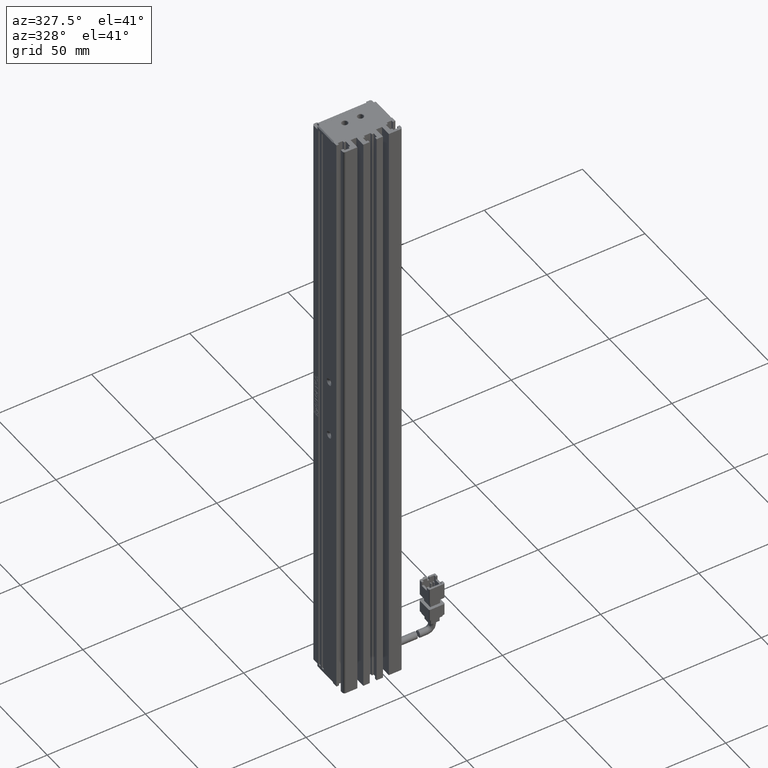
[diagram: clean part render]
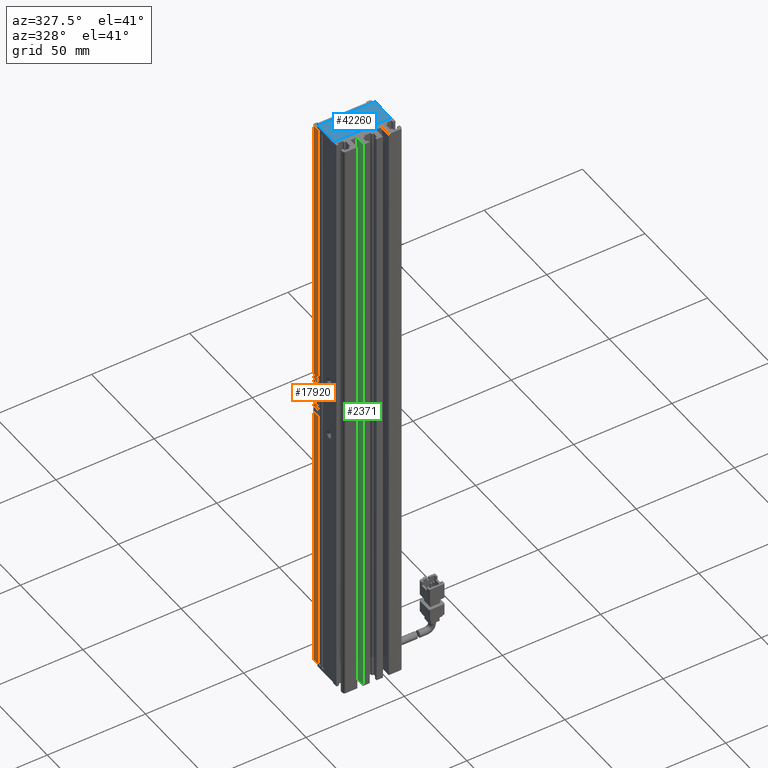
[diagram: same view with three faces highlighted in distinct colors, each labeled with its STEP entity id]
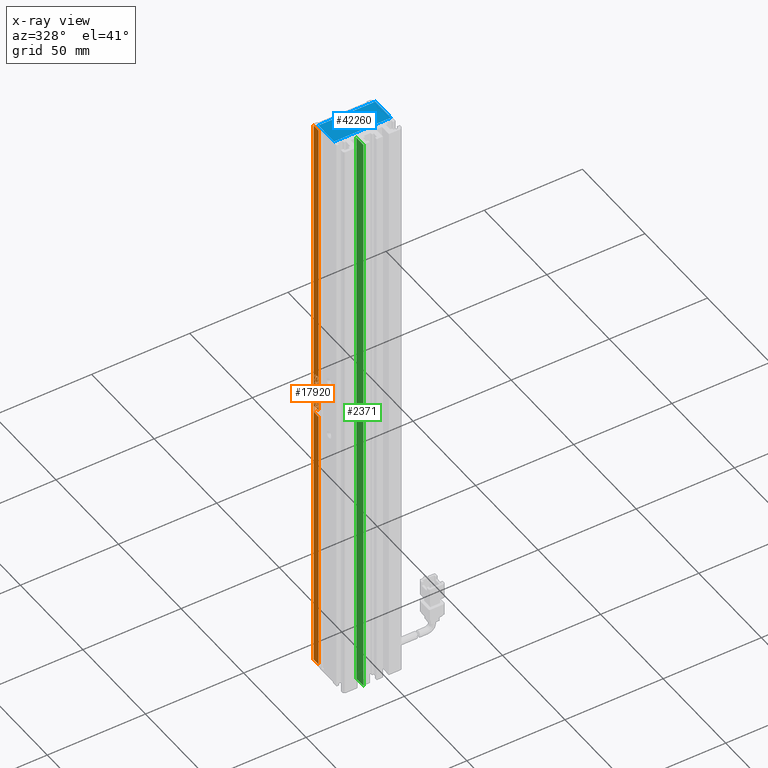
[diagram: x-ray of the same camera — body ghosted, the three highlighted faces saturated]
A machine part, auxiliary view with three faces highlighted in distinct colors.
The next image is the same camera in x-ray (body ghosted, the three faces saturated) — at least one of them is partly hidden behind the body in this view.
Their STEP definitions:

[orange] entity #17920 — the highlighted planar face has unit normal (-1, 0, 0).
#49 = ORIENTED_EDGE ( 'NONE', *, *, #20398, .F. ) ;
#223 = VECTOR ( 'NONE', #19843, 1000.000000000000000 ) ;
#246 = VECTOR ( 'NONE', #34493, 1000.000000000000000 ) ;
#266 = EDGE_CURVE ( 'NONE', #58053, #22199, #14681, .T. ) ;
#311 = VECTOR ( 'NONE', #11335, 1000.000000000000000 ) ;
#602 = ORIENTED_EDGE ( 'NONE', *, *, #47292, .F. ) ;
#737 = EDGE_CURVE ( 'NONE', #34370, #1821, #45833, .T. ) ;
#920 = CARTESIAN_POINT ( 'NONE',  ( 25.92537974683541800, 33.59093334023896200, -103.7438271276816000 ) ) ;
#930 = CARTESIAN_POINT ( 'NONE',  ( 25.92537974683541800, 31.74209613093664800, -119.9972073331980800 ) ) ;
#983 = EDGE_CURVE ( 'NONE', #48874, #61483, #38940, .T. ) ;
#1096 = VECTOR ( 'NONE', #14150, 1000.000000000000000 ) ;
#1097 = ORIENTED_EDGE ( 'NONE', *, *, #13427, .F. ) ;
#1122 = VERTEX_POINT ( 'NONE', #15151 ) ;
#1126 = CARTESIAN_POINT ( 'NONE',  ( 25.92537974683541800, 32.00571835916812800, -119.9175696912294600 ) ) ;
#1187 = DIRECTION ( 'NONE',  ( -0.0000000000000000000, -0.0000000000000000000, -1.000000000000000000 ) ) ;
#1321 = EDGE_CURVE ( 'NONE', #8881, #17955, #31526, .T. ) ;
#1386 = CARTESIAN_POINT ( 'NONE',  ( 25.92537974683541800, 32.56385789405182200, -113.5608904051288400 ) ) ;
#1418 = VECTOR ( 'NONE', #2358, 1000.000000000000000 ) ;
#1525 = B_SPLINE_CURVE_WITH_KNOTS ( 'NONE', 3,
 ( #16742, #40355, #59417, #31067 ),
 .UNSPECIFIED., .F., .F.,
 ( 4, 4 ),
 ( 5.000000000000000000, 6.000000000000000000 ),
 .UNSPECIFIED. ) ;
#1618 = CARTESIAN_POINT ( 'NONE',  ( 25.92537974683541800, 34.49426643449280000, -125.3002345125451300 ) ) ;
#1678 = CARTESIAN_POINT ( 'NONE',  ( 25.92537974683541800, 33.86618347544717300, -106.8353630930684100 ) ) ;
#1689 = ORIENTED_EDGE ( 'NONE', *, *, #39062, .F. ) ;
#1743 = CARTESIAN_POINT ( 'NONE',  ( 25.92537974683541800, 32.98628217744826000, -104.9733430822517000 ) ) ;
#1821 = VERTEX_POINT ( 'NONE', #45745 ) ;
#1862 = CARTESIAN_POINT ( 'NONE',  ( 25.92537974683541800, 33.18013696381928700, -105.4902441098342100 ) ) ;
#1900 = CARTESIAN_POINT ( 'NONE',  ( 25.92537974683541800, 32.18013696381927200, -105.8590921357940300 ) ) ;
#1946 = LINE ( 'NONE', #32424, #13114 ) ;
#1957 = B_SPLINE_CURVE_WITH_KNOTS ( 'NONE', 3,
 ( #49500, #44723, #16372, #21169 ),
 .UNSPECIFIED., .F., .F.,
 ( 4, 4 ),
 ( 3.000000000000000000, 4.000000000000000000 ),
 .UNSPECIFIED. ) ;
#1999 = PLANE ( 'NONE',  #23979 ) ;
#2008 = EDGE_LOOP ( 'NONE', ( #54973, #13772, #26868, #22085, #5203, #12487, #22139, #34210 ) ) ;
#2100 = CARTESIAN_POINT ( 'NONE',  ( 25.92537974683541800, 31.28478812660998200, -118.0517638502343100 ) ) ;
#2261 = CARTESIAN_POINT ( 'NONE',  ( 25.92537974683541800, 33.40106719637741900, -121.6243706647287600 ) ) ;
#2358 = DIRECTION ( 'NONE',  ( -0.0000000000000000000, -0.0000000000000000000, 1.000000000000000000 ) ) ;
#2434 = VERTEX_POINT ( 'NONE', #34244 ) ;
#2458 = VECTOR ( 'NONE', #52374, 1000.000000000000000 ) ;
#2602 = DIRECTION ( 'NONE',  ( -0.0000000000000000000, -0.0000000000000000000, -1.000000000000000000 ) ) ;
#2662 = LINE ( 'NONE', #39956, #26427 ) ;
#2748 = EDGE_LOOP ( 'NONE', ( #48936, #28229, #32225, #27871, #10439, #24549, #36396, #24791, #19372, #42941, #21468, #54722, #31672, #45198 ) ) ;
#2799 = B_SPLINE_CURVE_WITH_KNOTS ( 'NONE', 3,
 ( #1862, #58602, #6674, #39779 ),
 .UNSPECIFIED., .F., .F.,
 ( 4, 4 ),
 ( 4.000000000000000000, 5.000000000000000000 ),
 .UNSPECIFIED. ) ;
#2829 = CARTESIAN_POINT ( 'NONE',  ( 25.92537974683541800, 33.04060208009836000, -106.3146762353073300 ) ) ;
#2932 = CARTESIAN_POINT ( 'NONE',  ( 25.92537974683541800, 33.83129975451695500, -108.2564014922030700 ) ) ;
#2954 = ORIENTED_EDGE ( 'NONE', *, *, #51485, .F. ) ;
#2971 = CARTESIAN_POINT ( 'NONE',  ( 25.92537974683541800, 30.69594479660386800, 36.99999999999999300 ) ) ;
#3090 = B_SPLINE_CURVE_WITH_KNOTS ( 'NONE', 3,
 ( #34066, #57647, #24788, #57847 ),
 .UNSPECIFIED., .F., .F.,
 ( 4, 4 ),
 ( 4.000000000000000000, 5.000000000000000000 ),
 .UNSPECIFIED. ) ;
#3098 = VERTEX_POINT ( 'NONE', #32260 ) ;
#3110 = CARTESIAN_POINT ( 'NONE',  ( 25.92537974683541800, 32.42432301033090900, -119.9175696912294600 ) ) ;
#3223 = CARTESIAN_POINT ( 'NONE',  ( 25.92537974683541800, 32.57548580102857700, -121.1324831579685400 ) ) ;
#3232 = VECTOR ( 'NONE', #22774, 1000.000000000000000 ) ;
#3233 = CARTESIAN_POINT ( 'NONE',  ( 25.92537974683541800, 32.81967184754019900, -104.5465583337389400 ) ) ;
#3338 = LINE ( 'NONE', #34973, #311 ) ;
#3454 = CARTESIAN_POINT ( 'NONE',  ( 25.92537974683541800, 33.01734626614486200, -111.3805226387686200 ) ) ;
#3540 = CARTESIAN_POINT ( 'NONE',  ( 25.92537974683541800, 33.50571835916810000, -106.8028455159998300 ) ) ;
#3836 = CARTESIAN_POINT ( 'NONE',  ( 25.92537974683541800, 32.58711370800531900, -121.6531700157292900 ) ) ;
#3864 = CARTESIAN_POINT ( 'NONE',  ( 25.92537974683541800, 32.19558450302964300, -104.1234918112944300 ) ) ;
#4029 = DIRECTION ( 'NONE',  ( -0.0000000000000000000, 1.000000000000000000, -0.0000000000000000000 ) ) ;
#4039 = EDGE_CURVE ( 'NONE', #40287, #14318, #10690, .T. ) ;
#4643 = VECTOR ( 'NONE', #57006, 1000.000000000000000 ) ;
#4702 = CARTESIAN_POINT ( 'NONE',  ( 25.92537974683541800, 32.57548580102857700, -107.9526562244908000 ) ) ;
#4743 = EDGE_CURVE ( 'NONE', #22360, #30835, #6529, .T. ) ;
#4818 = DIRECTION ( 'NONE',  ( -0.0000000000000000000, -0.0000000000000000000, 1.000000000000000000 ) ) ;
#4832 = CARTESIAN_POINT ( 'NONE',  ( 25.92537974683541800, 34.49426643449280000, -122.4827314258719600 ) ) ;
#5133 = VECTOR ( 'NONE', #30173, 1000.000000000000000 ) ;
#5203 = ORIENTED_EDGE ( 'NONE', *, *, #39922, .F. ) ;
#5229 = LINE ( 'NONE', #14171, #28965 ) ;
#5357 = EDGE_CURVE ( 'NONE', #10549, #53109, #17307, .T. ) ;
#5377 = CARTESIAN_POINT ( 'NONE',  ( 25.92537974683541800, 31.28478812660998200, -103.9029672033982100 ) ) ;
#5632 = CARTESIAN_POINT ( 'NONE',  ( 25.92537974683541800, 33.04060208009836000, -105.8048060351992600 ) ) ;
#5633 = CARTESIAN_POINT ( 'NONE',  ( 25.92537974683541800, 32.26153231265649200, -118.5724507079952700 ) ) ;
#5821 = DIRECTION ( 'NONE',  ( -0.0000000000000000000, 1.000000000000000000, -0.0000000000000000000 ) ) ;
#5916 = EDGE_CURVE ( 'NONE', #28493, #28963, #46804, .T. ) ;
#5931 = EDGE_CURVE ( 'NONE', #20103, #41163, #60388, .T. ) ;
#5937 = VERTEX_POINT ( 'NONE', #34366 ) ;
#6006 = CARTESIAN_POINT ( 'NONE',  ( 25.92537974683541800, 33.38545064689120800, -113.6115934878763100 ) ) ;
#6037 = EDGE_CURVE ( 'NONE', #46412, #5937, #6065, .T. ) ;
#6065 = LINE ( 'NONE', #39359, #42369 ) ;
#6174 = CARTESIAN_POINT ( 'NONE',  ( 25.92537974683541800, 35.69594479660387500, 36.99999999999999300 ) ) ;
#6220 = CARTESIAN_POINT ( 'NONE',  ( 25.92537974683541800, 33.81967184754021400, -113.9984918112944000 ) ) ;
#6231 = FACE_OUTER_BOUND ( 'NONE', #58975, .T. ) ;
#6379 = ORIENTED_EDGE ( 'NONE', *, *, #53375, .F. ) ;
#6403 = EDGE_CURVE ( 'NONE', #60613, #33403, #50855, .T. ) ;
#6529 = B_SPLINE_CURVE_WITH_KNOTS ( 'NONE', 3,
 ( #60637, #8455, #3864, #8625 ),
 .UNSPECIFIED., .F., .F.,
 ( 4, 4 ),
 ( 3.000000000000000000, 4.000000000000000000 ),
 .UNSPECIFIED. ) ;
#6674 = CARTESIAN_POINT ( 'NONE',  ( 25.92537974683541800, 32.49409045219137200, -105.2336865111322900 ) ) ;
#6856 = ORIENTED_EDGE ( 'NONE', *, *, #54296, .F. ) ;
#6874 = ORIENTED_EDGE ( 'NONE', *, *, #24561, .F. ) ;
#6917 = CARTESIAN_POINT ( 'NONE',  ( 25.92537974683541800, 31.62199742893554000, -116.9525886203803800 ) ) ;
#7129 = CARTESIAN_POINT ( 'NONE',  ( 25.92537974683541800, 33.62963669340282300, -105.4685431904183200 ) ) ;
#7414 = VERTEX_POINT ( 'NONE', #25484 ) ;
#7487 = EDGE_CURVE ( 'NONE', #45083, #10549, #30900, .T. ) ;
#7741 = FACE_BOUND ( 'NONE', #2008, .T. ) ;
#7838 = LINE ( 'NONE', #20804, #45577 ) ;
#8093 = VERTEX_POINT ( 'NONE', #29912 ) ;
#8136 = LINE ( 'NONE', #58483, #5133 ) ;
#8250 = CARTESIAN_POINT ( 'NONE',  ( 25.92537974683541800, 33.55986925154235900, -111.3734242071842100 ) ) ;
#8344 = CARTESIAN_POINT ( 'NONE',  ( 25.92537974683541800, 33.50571835916810000, -106.5497357269245000 ) ) ;
#8364 = CARTESIAN_POINT ( 'NONE',  ( 25.92537974683541800, 31.28478812660998200, -114.7215853753831300 ) ) ;
#8455 = CARTESIAN_POINT ( 'NONE',  ( 25.92537974683541800, 32.32349147977384300, -104.2717476252477100 ) ) ;
#8558 = EDGE_CURVE ( 'NONE', #42968, #36588, #41310, .T. ) ;
#8625 = CARTESIAN_POINT ( 'NONE',  ( 25.92537974683541800, 31.99409045219137200, -104.1234918112944300 ) ) ;
#8736 = CARTESIAN_POINT ( 'NONE',  ( 25.92537974683541800, 31.62199742893554000, -118.0409471925816300 ) ) ;
#8881 = VERTEX_POINT ( 'NONE', #44884 ) ;
#8896 = CARTESIAN_POINT ( 'NONE',  ( 25.92537974683541800, 31.75754367014703300, -113.5971938123760900 ) ) ;
#8915 = VECTOR ( 'NONE', #27225, 1000.000000000000000 ) ;
#8952 = ORIENTED_EDGE ( 'NONE', *, *, #17234, .F. ) ;
#9240 = VECTOR ( 'NONE', #54252, 1000.000000000000000 ) ;
#9245 = LINE ( 'NONE', #30668, #47018 ) ;
#9312 = CARTESIAN_POINT ( 'NONE',  ( 25.92537974683541800, 32.56385789405182200, -115.8822803456371800 ) ) ;
#9354 = VERTEX_POINT ( 'NONE', #35712 ) ;
#9485 = ORIENTED_EDGE ( 'NONE', *, *, #8558, .F. ) ;
#9542 = VERTEX_POINT ( 'NONE', #13340 ) ;
#9748 = CARTESIAN_POINT ( 'NONE',  ( 25.92537974683541800, 31.73827649870299100, -104.1307930552098900 ) ) ;
#9835 = CARTESIAN_POINT ( 'NONE',  ( 25.92537974683541800, 31.41668374586362200, -105.2987216652695400 ) ) ;
#9862 = B_SPLINE_CURVE_WITH_KNOTS ( 'NONE', 3,
 ( #3454, #8250, #13012, #46104 ),
 .UNSPECIFIED., .F., .F.,
 ( 4, 4 ),
 ( 5.000000000000000000, 6.000000000000000000 ),
 .UNSPECIFIED. ) ;
#10073 = ORIENTED_EDGE ( 'NONE', *, *, #47282, .F. ) ;
#10110 = CARTESIAN_POINT ( 'NONE',  ( 25.92537974683541800, 31.53296281563105900, -103.5848222601856200 ) ) ;
#10129 = VECTOR ( 'NONE', #2602, 1000.000000000000000 ) ;
#10247 = CARTESIAN_POINT ( 'NONE',  ( 25.92537974683541800, 33.48246254521461700, -109.0700169600234900 ) ) ;
#10379 = CARTESIAN_POINT ( 'NONE',  ( 25.92537974683541800, 33.58312506549585000, -105.9206118761943900 ) ) ;
#10426 = CARTESIAN_POINT ( 'NONE',  ( 25.92537974683541800, 30.76584110086921700, -125.3002345125451300 ) ) ;
#10439 = ORIENTED_EDGE ( 'NONE', *, *, #26266, .F. ) ;
#10549 = VERTEX_POINT ( 'NONE', #17978 ) ;
#10659 = B_SPLINE_CURVE_WITH_KNOTS ( 'NONE', 3,
 ( #34091, #920, #15259, #48396 ),
 .UNSPECIFIED., .F., .F.,
 ( 4, 4 ),
 ( 6.000000000000000000, 7.000000000000000000 ),
 .UNSPECIFIED. ) ;
#10678 = CARTESIAN_POINT ( 'NONE',  ( 25.92537974683541800, 31.62199742893554000, -120.4490732066432200 ) ) ;
#10690 = LINE ( 'NONE', #49515, #9240 ) ;
#10956 = EDGE_CURVE ( 'NONE', #28981, #1122, #31386, .T. ) ;
#11010 = VERTEX_POINT ( 'NONE', #15816 ) ;
#11064 = B_SPLINE_CURVE_WITH_KNOTS ( 'NONE', 3,
 ( #57587, #19373, #33994, #5633 ),
 .UNSPECIFIED., .F., .F.,
 ( 4, 4 ),
 ( 3.000000000000000000, 4.000000000000000000 ),
 .UNSPECIFIED. ) ;
#11184 = CARTESIAN_POINT ( 'NONE',  ( 25.92537974683541800, 31.33129975451695500, -110.3608498426627000 ) ) ;
#11275 = VERTEX_POINT ( 'NONE', #8736 ) ;
#11330 = CARTESIAN_POINT ( 'NONE',  ( 25.92537974683541800, 32.26153231265649200, -118.5724507079952700 ) ) ;
#11335 = DIRECTION ( 'NONE',  ( -0.0000000000000000000, -0.0000000000000000000, 1.000000000000000000 ) ) ;
#11520 = CARTESIAN_POINT ( 'NONE',  ( 25.92537974683541800, 33.01734626614486200, -111.3805226387686200 ) ) ;
#11700 = VERTEX_POINT ( 'NONE', #45734 ) ;
#12088 = CARTESIAN_POINT ( 'NONE',  ( 25.92537974683541800, 32.56385789405182200, -113.5608904051288400 ) ) ;
#12487 = ORIENTED_EDGE ( 'NONE', *, *, #5916, .F. ) ;
#12538 = CARTESIAN_POINT ( 'NONE',  ( 25.92537974683541800, 31.33129975451695500, -109.8401629849019500 ) ) ;
#12771 = CARTESIAN_POINT ( 'NONE',  ( 25.92537974683541800, 33.51734626614486200, -120.4924750454750000 ) ) ;
#12877 = CARTESIAN_POINT ( 'NONE',  ( 25.92537974683541800, 33.86618347544717300, -114.7215853753831300 ) ) ;
#13004 = LINE ( 'NONE', #21119, #25606 ) ;
#13012 = CARTESIAN_POINT ( 'NONE',  ( 25.92537974683541800, 33.83129975451695500, -111.6554009513703800 ) ) ;
#13024 = ORIENTED_EDGE ( 'NONE', *, *, #19480, .F. ) ;
#13110 = CARTESIAN_POINT ( 'NONE',  ( 25.92537974683541800, 33.35056692596097600, -106.3870802374709000 ) ) ;
#13114 = VECTOR ( 'NONE', #4029, 1000.000000000000000 ) ;
#13194 = VERTEX_POINT ( 'NONE', #2932 ) ;
#13278 = ORIENTED_EDGE ( 'NONE', *, *, #41027, .F. ) ;
#13341 = VERTEX_POINT ( 'NONE', #60931 ) ;
#13340 = CARTESIAN_POINT ( 'NONE',  ( 25.92537974683541800, 33.18013696381928700, -105.4902441098342100 ) ) ;
#13427 = EDGE_CURVE ( 'NONE', #14613, #40344, #40278, .T. ) ;
#13526 = CARTESIAN_POINT ( 'NONE',  ( 25.92537974683541800, 34.69594479660387500, 38.99999999999999300 ) ) ;
#13772 = ORIENTED_EDGE ( 'NONE', *, *, #7487, .F. ) ;
#14076 = LINE ( 'NONE', #40481, #1418 ) ;
#14150 = DIRECTION ( 'NONE',  ( -0.0000000000000000000, 1.000000000000000000, -0.0000000000000000000 ) ) ;
#14171 = CARTESIAN_POINT ( 'NONE',  ( 25.92537974683541800, 33.48246254521461700, -111.1309958675409300 ) ) ;
#14212 = CARTESIAN_POINT ( 'NONE',  ( 25.92537974683541800, 35.69594479660387500, -267.0000000000000000 ) ) ;
#14219 = ORIENTED_EDGE ( 'NONE', *, *, #29173, .F. ) ;
#14318 = VERTEX_POINT ( 'NONE', #55195 ) ;
#14441 = LINE ( 'NONE', #20037, #39631 ) ;
#14442 = VECTOR ( 'NONE', #1187, 1000.000000000000000 ) ;
#14480 = CARTESIAN_POINT ( 'NONE',  ( 25.92537974683541800, 32.20339277777276300, -112.7256416220029400 ) ) ;
#14529 = CARTESIAN_POINT ( 'NONE',  ( 25.92537974683541800, 31.99409045219137200, -104.1234918112944300 ) ) ;
#14610 = CARTESIAN_POINT ( 'NONE',  ( 25.92537974683541800, 31.26153231265649200, -104.9660418383360300 ) ) ;
#14613 = VERTEX_POINT ( 'NONE', #58695 ) ;
#14681 = LINE ( 'NONE', #18601, #39882 ) ;
#14777 = EDGE_CURVE ( 'NONE', #35416, #44561, #18865, .T. ) ;
#14841 = EDGE_LOOP ( 'NONE', ( #1689, #39501, #26839, #43410 ) ) ;
#14990 = VERTEX_POINT ( 'NONE', #19598 ) ;
#15151 = CARTESIAN_POINT ( 'NONE',  ( 25.92537974683541800, 32.00571835916812800, -119.9175696912294600 ) ) ;
#15164 = CARTESIAN_POINT ( 'NONE',  ( 25.92537974683541800, 33.86618347544717300, -106.8353630930684100 ) ) ;
#15166 = CARTESIAN_POINT ( 'NONE',  ( 25.92537974683541800, 31.62199742893554000, -120.4490732066432200 ) ) ;
#15188 = EDGE_CURVE ( 'NONE', #7414, #56567, #21876, .T. ) ;
#15259 = CARTESIAN_POINT ( 'NONE',  ( 25.92537974683541800, 33.85056692596097600, -104.0621072791148000 ) ) ;
#15328 = VERTEX_POINT ( 'NONE', #31765 ) ;
#15441 = B_SPLINE_CURVE_WITH_KNOTS ( 'NONE', 3,
 ( #56800, #33204, #4832, #38023 ),
 .UNSPECIFIED., .F., .F.,
 ( 4, 4 ),
 ( 3.000000000000000000, 4.000000000000000000 ),
 .UNSPECIFIED. ) ;
#15684 = VECTOR ( 'NONE', #60260, 1000.000000000000000 ) ;
#15816 = CARTESIAN_POINT ( 'NONE',  ( 25.92537974683541800, 33.48246254521461700, -111.1309958675409300 ) ) ;
#15868 = CARTESIAN_POINT ( 'NONE',  ( 25.92537974683541800, 31.61800878642609500, -104.9695572520732400 ) ) ;
#15892 = CARTESIAN_POINT ( 'NONE',  ( 25.92537974683541800, 31.70339277777275900, -105.8590921357940300 ) ) ;
#15904 = VECTOR ( 'NONE', #47790, 1000.000000000000000 ) ;
#15941 = LINE ( 'NONE', #29861, #41126 ) ;
#15991 = VERTEX_POINT ( 'NONE', #46986 ) ;
#16372 = CARTESIAN_POINT ( 'NONE',  ( 25.92537974683541800, 31.97847390270515400, -121.1107822385526400 ) ) ;
#16586 = LINE ( 'NONE', #48590, #40301 ) ;
#16695 = B_SPLINE_CURVE_WITH_KNOTS ( 'NONE', 3,
 ( #3540, #8344, #13110, #46201 ),
 .UNSPECIFIED., .F., .F.,
 ( 4, 4 ),
 ( 1.000000000000000000, 2.000000000000000000 ),
 .UNSPECIFIED. ) ;
#16702 = CARTESIAN_POINT ( 'NONE',  ( 25.92537974683541800, 31.28478812660998200, -118.0517638502343100 ) ) ;
#16742 = CARTESIAN_POINT ( 'NONE',  ( 25.92537974683541800, 30.76584110086921700, -122.9313259134012800 ) ) ;
#16880 = VERTEX_POINT ( 'NONE', #18116 ) ;
#17020 = CARTESIAN_POINT ( 'NONE',  ( 25.92537974683541800, 34.49426643449280000, -125.7489581096125000 ) ) ;
#17234 = EDGE_CURVE ( 'NONE', #9542, #22360, #2799, .T. ) ;
#17307 = B_SPLINE_CURVE_WITH_KNOTS ( 'NONE', 3,
 ( #38824, #52902, #29321, #10426 ),
 .UNSPECIFIED., .F., .F.,
 ( 4, 4 ),
 ( 7.000000000000000000, 8.000000000000000000 ),
 .UNSPECIFIED. ) ;
#17397 = B_SPLINE_CURVE_WITH_KNOTS ( 'NONE', 3,
 ( #50157, #17020, #26573, #59676 ),
 .UNSPECIFIED., .F., .F.,
 ( 4, 4 ),
 ( 1.000000000000000000, 2.000000000000000000 ),
 .UNSPECIFIED. ) ;
#17415 = VECTOR ( 'NONE', #34651, 1000.000000000000000 ) ;
#17495 = EDGE_CURVE ( 'NONE', #9354, #30929, #59572, .T. ) ;
#17687 = EDGE_CURVE ( 'NONE', #15991, #19073, #53666, .T. ) ;
#17729 = ORIENTED_EDGE ( 'NONE', *, *, #34847, .F. ) ;
#17887 = CARTESIAN_POINT ( 'NONE',  ( 25.92537974683541800, 31.44560283580698400, -122.2515981718303000 ) ) ;
#17912 = VERTEX_POINT ( 'NONE', #25659 ) ;
#17920 = ADVANCED_FACE ( 'NONE', ( #20337, #32906, #21806, #7741, #56599, #58034, #43974, #31480, #18868, #6231 ), #1999, .T. ) ;
#17955 = VERTEX_POINT ( 'NONE', #21314 ) ;
#17978 = CARTESIAN_POINT ( 'NONE',  ( 25.92537974683541800, 31.44560283580698400, -125.9800234112660200 ) ) ;
#18087 = CARTESIAN_POINT ( 'NONE',  ( 25.92537974683541800, 32.77316021963325500, -120.6117963002071300 ) ) ;
#18116 = CARTESIAN_POINT ( 'NONE',  ( 25.92537974683541800, 33.83129975451695500, -112.2266556836578700 ) ) ;
#18413 = EDGE_CURVE ( 'NONE', #52308, #20103, #54773, .T. ) ;
#18451 = ORIENTED_EDGE ( 'NONE', *, *, #17687, .F. ) ;
#18601 = CARTESIAN_POINT ( 'NONE',  ( 25.92537974683541800, 32.38943928940069100, -119.0931375657563500 ) ) ;
#18691 = CARTESIAN_POINT ( 'NONE',  ( 25.92537974683541800, 33.40106719637741900, -115.8461797507210900 ) ) ;
#18713 = VERTEX_POINT ( 'NONE', #56322 ) ;
#18865 = LINE ( 'NONE', #54767, #31478 ) ;
#18868 = FACE_BOUND ( 'NONE', #2748, .T. ) ;
#18898 = CARTESIAN_POINT ( 'NONE',  ( 25.92537974683541800, 31.62199742893554000, -106.6943409189201600 ) ) ;
#18959 = CARTESIAN_POINT ( 'NONE',  ( 25.92537974683541800, 33.04060208009836000, -105.8048060351992600 ) ) ;
#18964 = DIRECTION ( 'NONE',  ( -0.0000000000000000000, -1.000000000000000000, -0.0000000000000000000 ) ) ;
#19064 = EDGE_CURVE ( 'NONE', #23775, #11700, #9245, .T. ) ;
#19073 = VERTEX_POINT ( 'NONE', #35386 ) ;
#19271 = VECTOR ( 'NONE', #24351, 1000.000000000000000 ) ;
#19372 = ORIENTED_EDGE ( 'NONE', *, *, #4039, .F. ) ;
#19373 = CARTESIAN_POINT ( 'NONE',  ( 25.92537974683541800, 31.62199742893554000, -118.3953279389309300 ) ) ;
#19394 = EDGE_CURVE ( 'NONE', #24005, #22200, #35756, .T. ) ;
#19480 = EDGE_CURVE ( 'NONE', #11010, #29334, #16586, .T. ) ;
#19491 = ORIENTED_EDGE ( 'NONE', *, *, #19678, .F. ) ;
#19529 = CARTESIAN_POINT ( 'NONE',  ( 25.92537974683541800, 32.02897417312161800, -103.5919206917704800 ) ) ;
#19598 = CARTESIAN_POINT ( 'NONE',  ( 25.92537974683541800, 31.28478812660998200, -106.8136621736524000 ) ) ;
#19665 = CARTESIAN_POINT ( 'NONE',  ( 25.92537974683541800, 33.50571835916810000, -106.8028455159998300 ) ) ;
#19678 = EDGE_CURVE ( 'NONE', #26855, #25899, #31013, .T. ) ;
#19843 = DIRECTION ( 'NONE',  ( -0.0000000000000000000, -0.0000000000000000000, 1.000000000000000000 ) ) ;
#20037 = CARTESIAN_POINT ( 'NONE',  ( 25.92537974683541800, 30.69594479660386800, 38.99999999999999300 ) ) ;
#20103 = VERTEX_POINT ( 'NONE', #57996 ) ;
#20150 = CARTESIAN_POINT ( 'NONE',  ( 25.92537974683541800, 31.47083463823789600, -119.5741408107535800 ) ) ;
#20255 = B_SPLINE_CURVE_WITH_KNOTS ( 'NONE', 3,
 ( #41131, #22893, #27886, #61023 ),
 .UNSPECIFIED., .F., .F.,
 ( 4, 4 ),
 ( 7.000000000000000000, 8.000000000000000000 ),
 .UNSPECIFIED. ) ;
#20337 = FACE_BOUND ( 'NONE', #14841, .T. ) ;
#20398 = EDGE_CURVE ( 'NONE', #2434, #31702, #16695, .T. ) ;
#20652 = CARTESIAN_POINT ( 'NONE',  ( 25.92537974683541800, 32.81967184754019900, -104.5465583337389400 ) ) ;
#20804 = CARTESIAN_POINT ( 'NONE',  ( 25.92537974683541800, 31.33129975451695500, -112.7256416220029400 ) ) ;
#20857 = ORIENTED_EDGE ( 'NONE', *, *, #51046, .T. ) ;
#20951 = CARTESIAN_POINT ( 'NONE',  ( 25.92537974683541800, 33.86618347544717300, -120.4924750454750000 ) ) ;
#21119 = CARTESIAN_POINT ( 'NONE',  ( 25.92537974683541800, 32.20339277777276300, -112.2266556836578700 ) ) ;
#21169 = CARTESIAN_POINT ( 'NONE',  ( 25.92537974683541800, 32.57548580102857700, -121.1324831579685400 ) ) ;
#21271 = CARTESIAN_POINT ( 'NONE',  ( 25.92537974683541800, 31.31585221530657000, -121.2265204754372500 ) ) ;
#21314 = CARTESIAN_POINT ( 'NONE',  ( 25.92537974683541800, 31.33129975451695500, -108.7662716923110100 ) ) ;
#21468 = ORIENTED_EDGE ( 'NONE', *, *, #27305, .F. ) ;
#21504 = CARTESIAN_POINT ( 'NONE',  ( 25.92537974683541800, 33.49791008442500100, -104.3838352401750300 ) ) ;
#21651 = VERTEX_POINT ( 'NONE', #11184 ) ;
#21654 = CARTESIAN_POINT ( 'NONE',  ( 25.92537974683541800, 33.48246254521461700, -109.0700169600234900 ) ) ;
#21672 = ORIENTED_EDGE ( 'NONE', *, *, #42396, .F. ) ;
#21806 = FACE_BOUND ( 'NONE', #32246, .T. ) ;
#21876 = B_SPLINE_CURVE_WITH_KNOTS ( 'NONE', 3,
 ( #2100, #35267, #6917, #40014 ),
 .UNSPECIFIED., .F., .F.,
 ( 4, 4 ),
 ( 8.000000000000000000, 9.000000000000000000 ),
 .UNSPECIFIED. ) ;
#21877 = ORIENTED_EDGE ( 'NONE', *, *, #25930, .F. ) ;
#21916 = CARTESIAN_POINT ( 'NONE',  ( 25.92537974683541800, 33.67857273828475700, -125.9800234112660200 ) ) ;
#22030 = EDGE_CURVE ( 'NONE', #8093, #40287, #23026, .T. ) ;
#22076 = LINE ( 'NONE', #49740, #58307 ) ;
#22085 = ORIENTED_EDGE ( 'NONE', *, *, #14777, .F. ) ;
#22099 = CARTESIAN_POINT ( 'NONE',  ( 25.92537974683541800, 32.42432301033090900, -103.5919206917704800 ) ) ;
#22139 = ORIENTED_EDGE ( 'NONE', *, *, #36184, .F. ) ;
#22199 = VERTEX_POINT ( 'NONE', #31314 ) ;
#22200 = VERTEX_POINT ( 'NONE', #40800 ) ;
#22213 = VECTOR ( 'NONE', #4818, 1000.000000000000000 ) ;
#22360 = VERTEX_POINT ( 'NONE', #42211 ) ;
#22412 = VERTEX_POINT ( 'NONE', #61305 ) ;
#22433 = CARTESIAN_POINT ( 'NONE',  ( 25.92537974683541800, 31.75754367014703300, -115.8461797507210900 ) ) ;
#22683 = CARTESIAN_POINT ( 'NONE',  ( 25.92537974683541800, 31.62199742893554000, -106.6943409189201600 ) ) ;
#22702 = VERTEX_POINT ( 'NONE', #34898 ) ;
#22774 = DIRECTION ( 'NONE',  ( -0.0000000000000000000, -1.000000000000000000, -0.0000000000000000000 ) ) ;
#22849 = EDGE_CURVE ( 'NONE', #13194, #8881, #24265, .T. ) ;
#22893 = CARTESIAN_POINT ( 'NONE',  ( 25.92537974683541800, 31.75372403791337900, -107.9165556295744800 ) ) ;
#22965 = CARTESIAN_POINT ( 'NONE',  ( 25.92537974683541800, 34.69594479660387500, 36.99999999999999300 ) ) ;
#22982 = EDGE_CURVE ( 'NONE', #25188, #41362, #1946, .T. ) ;
#23026 = LINE ( 'NONE', #38321, #59333 ) ;
#23072 = VECTOR ( 'NONE', #33454, 1000.000000000000000 ) ;
#23769 = CARTESIAN_POINT ( 'NONE',  ( 25.92537974683541800, 33.83129975451695500, -116.9886892152967000 ) ) ;
#23775 = VERTEX_POINT ( 'NONE', #28420 ) ;
#23903 = ORIENTED_EDGE ( 'NONE', *, *, #55739, .F. ) ;
#23970 = VECTOR ( 'NONE', #39101, 1000.000000000000000 ) ;
#23979 = AXIS2_PLACEMENT_3D ( 'NONE', #54189, #25862, #58942 ) ;
#24005 = VERTEX_POINT ( 'NONE', #1678 ) ;
#24060 = EDGE_CURVE ( 'NONE', #41362, #49578, #59128, .T. ) ;
#24158 = CARTESIAN_POINT ( 'NONE',  ( 25.92537974683541800, 32.56385789405182200, -115.8822803456371800 ) ) ;
#24265 = LINE ( 'NONE', #31229, #10129 ) ;
#24351 = DIRECTION ( 'NONE',  ( -0.0000000000000000000, -1.000000000000000000, -0.0000000000000000000 ) ) ;
#24549 = ORIENTED_EDGE ( 'NONE', *, *, #37869, .F. ) ;
#24561 = EDGE_CURVE ( 'NONE', #61483, #26890, #15941, .T. ) ;
#24588 = B_SPLINE_CURVE_WITH_KNOTS ( 'NONE', 3,
 ( #20652, #48997, #1743, #34890 ),
 .UNSPECIFIED., .F., .F.,
 ( 4, 4 ),
 ( 10.00000000000000000, 11.00000000000000000 ),
 .UNSPECIFIED. ) ;
#24635 = EDGE_CURVE ( 'NONE', #27505, #58053, #28566, .T. ) ;
#24713 = EDGE_CURVE ( 'NONE', #17955, #22702, #3338, .T. ) ;
#24788 = CARTESIAN_POINT ( 'NONE',  ( 25.92537974683541800, 31.60638087944935000, -117.6720991666214600 ) ) ;
#24791 = ORIENTED_EDGE ( 'NONE', *, *, #38493, .F. ) ;
#24846 = EDGE_LOOP ( 'NONE', ( #6379, #28340, #42368, #29020, #58897, #34163, #18451, #2954, #46490, #28629 ) ) ;
#24886 = CARTESIAN_POINT ( 'NONE',  ( 25.92537974683541800, 31.28478812660998200, -120.4598898642961200 ) ) ;
#24910 = LINE ( 'NONE', #60546, #59749 ) ;
#25024 = CARTESIAN_POINT ( 'NONE',  ( 25.92537974683541800, 33.83129975451695500, -113.2354442180008100 ) ) ;
#25188 = VERTEX_POINT ( 'NONE', #15892 ) ;
#25295 = EDGE_CURVE ( 'NONE', #1821, #44179, #54361, .T. ) ;
#25360 = CARTESIAN_POINT ( 'NONE',  ( 25.92537974683541800, 33.50571835916810000, -104.8467205836037800 ) ) ;
#25423 = B_SPLINE_CURVE_WITH_KNOTS ( 'NONE', 3,
 ( #27969, #56273, #61095, #32701 ),
 .UNSPECIFIED., .F., .F.,
 ( 4, 4 ),
 ( 1.000000000000000000, 2.000000000000000000 ),
 .UNSPECIFIED. ) ;
#25424 = CARTESIAN_POINT ( 'NONE',  ( 25.92537974683541800, 32.19176487079602800, -105.5445302104288600 ) ) ;
#25484 = CARTESIAN_POINT ( 'NONE',  ( 25.92537974683541800, 31.28478812660998200, -118.0517638502343100 ) ) ;
#25508 = ORIENTED_EDGE ( 'NONE', *, *, #45392, .T. ) ;
#25562 = DIRECTION ( 'NONE',  ( -0.0000000000000000000, -0.0000000000000000000, 1.000000000000000000 ) ) ;
#25606 = VECTOR ( 'NONE', #49444, 1000.000000000000000 ) ;
#25621 = ORIENTED_EDGE ( 'NONE', *, *, #737, .F. ) ;
#25659 = CARTESIAN_POINT ( 'NONE',  ( 25.92537974683541800, 33.86618347544717300, -104.6115934878764100 ) ) ;
#25862 = DIRECTION ( 'NONE',  ( -1.000000000000000000, 0.0000000000000000000, 0.0000000000000000000 ) ) ;
#25899 = VERTEX_POINT ( 'NONE', #46018 ) ;
#25914 = CARTESIAN_POINT ( 'NONE',  ( 25.92537974683541800, 33.82731111200750000, -121.2374047372003500 ) ) ;
#25930 = EDGE_CURVE ( 'NONE', #36588, #9354, #30608, .T. ) ;
#25988 = CARTESIAN_POINT ( 'NONE',  ( 25.92537974683541800, 33.85837520070406000, -105.1756821844691500 ) ) ;
#26043 = CARTESIAN_POINT ( 'NONE',  ( 25.92537974683541800, 32.38943928940069100, -119.0931375657563500 ) ) ;
#26266 = EDGE_CURVE ( 'NONE', #35432, #31292, #1957, .T. ) ;
#26274 = EDGE_CURVE ( 'NONE', #45798, #52308, #58705, .T. ) ;
#26311 = DIRECTION ( 'NONE',  ( -0.0000000000000000000, -1.000000000000000000, -0.0000000000000000000 ) ) ;
#26357 = DIRECTION ( 'NONE',  ( -0.0000000000000000000, 1.000000000000000000, -0.0000000000000000000 ) ) ;
#26427 = VECTOR ( 'NONE', #35200, 1000.000000000000000 ) ;
#26545 = CARTESIAN_POINT ( 'NONE',  ( 25.92537974683541800, 31.70339277777275900, -105.8590921357940300 ) ) ;
#26573 = CARTESIAN_POINT ( 'NONE',  ( 25.92537974683541800, 34.12720121334164200, -125.9800234112660200 ) ) ;
#26839 = ORIENTED_EDGE ( 'NONE', *, *, #1321, .F. ) ;
#26849 = CARTESIAN_POINT ( 'NONE',  ( 25.92537974683541800, 33.83129975451695500, -119.0931375657563500 ) ) ;
#26855 = VERTEX_POINT ( 'NONE', #19529 ) ;
#26868 = ORIENTED_EDGE ( 'NONE', *, *, #61557, .F. ) ;
#26877 = ORIENTED_EDGE ( 'NONE', *, *, #22982, .F. ) ;
#26882 = CARTESIAN_POINT ( 'NONE',  ( 25.92537974683541800, 32.68777622828655900, -103.9102684473140000 ) ) ;
#26890 = VERTEX_POINT ( 'NONE', #38338 ) ;
#26999 = VERTEX_POINT ( 'NONE', #43653 ) ;
#27059 = EDGE_LOOP ( 'NONE', ( #43107, #42367, #1097, #14219, #47219, #41510, #61412 ) ) ;
#27138 = CARTESIAN_POINT ( 'NONE',  ( 25.92537974683541800, 32.20339277777276300, -112.2266556836578700 ) ) ;
#27225 = DIRECTION ( 'NONE',  ( -0.0000000000000000000, -0.0000000000000000000, 1.000000000000000000 ) ) ;
#27233 = CARTESIAN_POINT ( 'NONE',  ( 25.92537974683541800, 32.56385789405182200, -115.8822803456371800 ) ) ;
#27288 = CARTESIAN_POINT ( 'NONE',  ( 25.92537974683541800, 32.18013696381927200, -105.8590921357940300 ) ) ;
#27305 = EDGE_CURVE ( 'NONE', #41163, #8093, #40896, .T. ) ;
#27475 = CARTESIAN_POINT ( 'NONE',  ( 25.92537974683541800, 33.86618347544717300, -120.4924750454750000 ) ) ;
#27486 = CARTESIAN_POINT ( 'NONE',  ( 25.92537974683541800, 31.65289250735631300, -107.1645275062647000 ) ) ;
#27505 = VERTEX_POINT ( 'NONE', #33678 ) ;
#27690 = ORIENTED_EDGE ( 'NONE', *, *, #24060, .F. ) ;
#27764 = CARTESIAN_POINT ( 'NONE',  ( 25.92537974683541800, 33.48246254521461700, -109.8401629849019500 ) ) ;
#27790 = CARTESIAN_POINT ( 'NONE',  ( 25.92537974683541800, 31.33129975451695500, -113.9839569275735700 ) ) ;
#27818 = CARTESIAN_POINT ( 'NONE',  ( 25.92537974683541800, 33.08711370800531900, -103.6570234500180400 ) ) ;
#27871 = ORIENTED_EDGE ( 'NONE', *, *, #30537, .F. ) ;
#27886 = CARTESIAN_POINT ( 'NONE',  ( 25.92537974683541800, 31.32366049004967200, -107.5368909459617400 ) ) ;
#27969 = CARTESIAN_POINT ( 'NONE',  ( 25.92537974683541800, 33.51734626614486200, -120.4924750454750000 ) ) ;
#28229 = ORIENTED_EDGE ( 'NONE', *, *, #19064, .F. ) ;
#28275 = EDGE_CURVE ( 'NONE', #17912, #9542, #53942, .T. ) ;
#28340 = ORIENTED_EDGE ( 'NONE', *, *, #266, .F. ) ;
#28344 = CARTESIAN_POINT ( 'NONE',  ( 25.92537974683541800, 33.81967184754021400, -107.5441921898774400 ) ) ;
#28420 = CARTESIAN_POINT ( 'NONE',  ( 25.92537974683541800, 33.13362533591229900, -119.9826048453669400 ) ) ;
#28493 = VERTEX_POINT ( 'NONE', #17887 ) ;
#28566 = LINE ( 'NONE', #48862, #14442 ) ;
#28629 = ORIENTED_EDGE ( 'NONE', *, *, #15188, .F. ) ;
#28653 = LINE ( 'NONE', #23769, #52315 ) ;
#28858 = CARTESIAN_POINT ( 'NONE',  ( 25.92537974683541800, 31.61036952195880900, -104.6224777496394000 ) ) ;
#28955 = B_SPLINE_CURVE_WITH_KNOTS ( 'NONE', 3,
 ( #38136, #5377, #10110, #43242 ),
 .UNSPECIFIED., .F., .F.,
 ( 4, 4 ),
 ( 12.00000000000000000, 13.00000000000000000 ),
 .UNSPECIFIED. ) ;
#28963 = VERTEX_POINT ( 'NONE', #55088 ) ;
#28965 = VECTOR ( 'NONE', #18964, 1000.000000000000000 ) ;
#28981 = VERTEX_POINT ( 'NONE', #3110 ) ;
#29020 = ORIENTED_EDGE ( 'NONE', *, *, #40259, .F. ) ;
#29047 = CARTESIAN_POINT ( 'NONE',  ( 25.92537974683541800, 31.28478812660998200, -119.9175696912294600 ) ) ;
#29076 = CARTESIAN_POINT ( 'NONE',  ( 25.92537974683541800, 32.41269510335417400, -116.9886892152967000 ) ) ;
#29089 = ORIENTED_EDGE ( 'NONE', *, *, #38780, .F. ) ;
#29173 = EDGE_CURVE ( 'NONE', #59139, #14613, #7838, .T. ) ;
#29210 = CARTESIAN_POINT ( 'NONE',  ( 25.92537974683541800, 33.08711370800531900, -103.6570234500180400 ) ) ;
#29321 = CARTESIAN_POINT ( 'NONE',  ( 25.92537974683541800, 30.76584110086921700, -125.7489581096125000 ) ) ;
#29334 = VERTEX_POINT ( 'NONE', #54927 ) ;
#29358 = B_SPLINE_CURVE_WITH_KNOTS ( 'NONE', 3,
 ( #39731, #44495, #49275, #20951 ),
 .UNSPECIFIED., .F., .F.,
 ( 4, 4 ),
 ( 13.00000000000000000, 14.00000000000000000 ),
 .UNSPECIFIED. ) ;
#29457 = CARTESIAN_POINT ( 'NONE',  ( 25.92537974683541800, 33.81451149479428200, -122.2515981718303000 ) ) ;
#29780 = B_SPLINE_CURVE_WITH_KNOTS ( 'NONE', 3,
 ( #14529, #9748, #57194, #28858 ),
 .UNSPECIFIED., .F., .F.,
 ( 4, 4 ),
 ( 2.000000000000000000, 3.000000000000000000 ),
 .UNSPECIFIED. ) ;
#29861 = CARTESIAN_POINT ( 'NONE',  ( 25.92537974683541800, 33.83129975451695500, -111.1309958675409300 ) ) ;
#29912 = CARTESIAN_POINT ( 'NONE',  ( 25.92537974683541800, 32.77316021963325500, -119.4294004105374000 ) ) ;
#30095 = VERTEX_POINT ( 'NONE', #22965 ) ;
#30130 = CARTESIAN_POINT ( 'NONE',  ( 25.92537974683541800, 33.18013696381928700, -104.9587405944203300 ) ) ;
#30173 = DIRECTION ( 'NONE',  ( -0.0000000000000000000, 1.000000000000000000, -0.0000000000000000000 ) ) ;
#30174 = B_SPLINE_CURVE_WITH_KNOTS ( 'NONE', 3,
 ( #35846, #50124, #54867, #26545 ),
 .UNSPECIFIED., .F., .F.,
 ( 4, 4 ),
 ( 6.000000000000000000, 7.000000000000000000 ),
 .UNSPECIFIED. ) ;
#30192 = EDGE_CURVE ( 'NONE', #56567, #15328, #28653, .T. ) ;
#30324 = ORIENTED_EDGE ( 'NONE', *, *, #28275, .F. ) ;
#30391 = EDGE_CURVE ( 'NONE', #26999, #46412, #49206, .T. ) ;
#30415 = CARTESIAN_POINT ( 'NONE',  ( 25.92537974683541800, 31.84292766149368600, -119.4294004105374000 ) ) ;
#30537 = EDGE_CURVE ( 'NONE', #31292, #13341, #44414, .T. ) ;
#30596 = EDGE_CURVE ( 'NONE', #49578, #45667, #39663, .T. ) ;
#30608 = B_SPLINE_CURVE_WITH_KNOTS ( 'NONE', 3,
 ( #27233, #22433, #36738, #8364 ),
 .UNSPECIFIED., .F., .F.,
 ( 4, 4 ),
 ( 1.000000000000000000, 2.000000000000000000 ),
 .UNSPECIFIED. ) ;
#30668 = CARTESIAN_POINT ( 'NONE',  ( 25.92537974683541800, 33.13362533591229900, -119.4402846723003900 ) ) ;
#30835 = VERTEX_POINT ( 'NONE', #39819 ) ;
#30900 = LINE ( 'NONE', #54424, #43400 ) ;
#30929 = VERTEX_POINT ( 'NONE', #12088 ) ;
#31013 = B_SPLINE_CURVE_WITH_KNOTS ( 'NONE', 3,
 ( #59987, #22099, #26882, #3233 ),
 .UNSPECIFIED., .F., .F.,
 ( 4, 4 ),
 ( 11.00000000000000000, 12.00000000000000000 ),
 .UNSPECIFIED. ) ;
#31045 = CARTESIAN_POINT ( 'NONE',  ( 25.92537974683541800, 33.08711370800531900, -104.1560093883630000 ) ) ;
#31067 = CARTESIAN_POINT ( 'NONE',  ( 25.92537974683541800, 31.44560283580698400, -122.2515981718303000 ) ) ;
#31219 = DIRECTION ( 'NONE',  ( -0.0000000000000000000, -0.0000000000000000000, -1.000000000000000000 ) ) ;
#31229 = CARTESIAN_POINT ( 'NONE',  ( 25.92537974683541800, 33.83129975451695500, -108.7662716923110100 ) ) ;
#31292 = VERTEX_POINT ( 'NONE', #34349 ) ;
#31314 = CARTESIAN_POINT ( 'NONE',  ( 25.92537974683541800, 32.38943928940069100, -119.0931375657563500 ) ) ;
#31386 = LINE ( 'NONE', #38199, #4643 ) ;
#31431 = CARTESIAN_POINT ( 'NONE',  ( 25.92537974683541800, 32.55222998707508000, -107.4211527090769200 ) ) ;
#31461 = EDGE_CURVE ( 'NONE', #14990, #25188, #30174, .T. ) ;
#31478 = VECTOR ( 'NONE', #31219, 1000.000000000000000 ) ;
#31480 = FACE_BOUND ( 'NONE', #24846, .T. ) ;
#31526 = LINE ( 'NONE', #59028, #17415 ) ;
#31633 = CARTESIAN_POINT ( 'NONE',  ( 25.92537974683541800, 33.16452041433306900, -121.1107822385526400 ) ) ;
#31641 = EDGE_CURVE ( 'NONE', #13341, #23775, #25423, .T. ) ;
#31650 = VERTEX_POINT ( 'NONE', #27764 ) ;
#31672 = ORIENTED_EDGE ( 'NONE', *, *, #18413, .F. ) ;
#31702 = VERTEX_POINT ( 'NONE', #2829 ) ;
#31709 = VECTOR ( 'NONE', #60973, 1000.000000000000000 ) ;
#31765 = CARTESIAN_POINT ( 'NONE',  ( 25.92537974683541800, 33.83129975451695500, -116.9886892152967000 ) ) ;
#31912 = CARTESIAN_POINT ( 'NONE',  ( 25.92537974683541800, 32.77316021963325500, -119.4294004105374000 ) ) ;
#32225 = ORIENTED_EDGE ( 'NONE', *, *, #31641, .F. ) ;
#32228 = CARTESIAN_POINT ( 'NONE',  ( 25.92537974683541800, 32.55222998707508000, -107.4211527090769200 ) ) ;
#32246 = EDGE_LOOP ( 'NONE', ( #35798, #35654, #42669, #29089, #47356, #8952, #30324, #13278, #49099, #57851, #25621, #10073, #19491, #6856 ) ) ;
#32260 = CARTESIAN_POINT ( 'NONE',  ( 25.92537974683541800, 33.83129975451695500, -113.2354442180008100 ) ) ;
#32424 = CARTESIAN_POINT ( 'NONE',  ( 25.92537974683541800, 32.18013696381927200, -105.8590921357940300 ) ) ;
#32701 = CARTESIAN_POINT ( 'NONE',  ( 25.92537974683541800, 33.13362533591229900, -119.9826048453669400 ) ) ;
#32709 = CARTESIAN_POINT ( 'NONE',  ( 25.92537974683541800, 32.45920673126112600, -111.3661229632685400 ) ) ;
#32906 = FACE_BOUND ( 'NONE', #41474, .T. ) ;
#32976 = CARTESIAN_POINT ( 'NONE',  ( 25.92537974683541800, 32.20339277777276300, -112.7256416220029400 ) ) ;
#33073 = CARTESIAN_POINT ( 'NONE',  ( 25.92537974683541800, 33.38943928940067700, -107.9165556295744800 ) ) ;
#33204 = CARTESIAN_POINT ( 'NONE',  ( 25.92537974683541800, 34.26326907939240800, -122.2515981718303000 ) ) ;
#33292 = LINE ( 'NONE', #18959, #22213 ) ;
#33293 = EDGE_CURVE ( 'NONE', #16880, #3098, #47413, .T. ) ;
#33403 = VERTEX_POINT ( 'NONE', #11520 ) ;
#33454 = DIRECTION ( 'NONE',  ( 0.0000000000000000000, 1.000000000000000000, 0.0000000000000000000 ) ) ;
#33457 = CARTESIAN_POINT ( 'NONE',  ( 25.92537974683541800, 31.33129975451695500, -113.2354442180008100 ) ) ;
#33678 = CARTESIAN_POINT ( 'NONE',  ( 25.92537974683541800, 33.83129975451695500, -118.5724507079952700 ) ) ;
#33994 = CARTESIAN_POINT ( 'NONE',  ( 25.92537974683541800, 31.83511938675059800, -118.5724507079952700 ) ) ;
#34066 = CARTESIAN_POINT ( 'NONE',  ( 25.92537974683541800, 32.26153231265649200, -117.5093760730574500 ) ) ;
#34091 = CARTESIAN_POINT ( 'NONE',  ( 25.92537974683541800, 33.08711370800531900, -103.6570234500180400 ) ) ;
#34163 = ORIENTED_EDGE ( 'NONE', *, *, #60917, .F. ) ;
#34204 = VECTOR ( 'NONE', #5821, 1000.000000000000000 ) ;
#34210 = ORIENTED_EDGE ( 'NONE', *, *, #57283, .F. ) ;
#34244 = CARTESIAN_POINT ( 'NONE',  ( 25.92537974683541800, 33.50571835916810000, -106.8028455159998300 ) ) ;
#34323 = CARTESIAN_POINT ( 'NONE',  ( 25.92537974683541800, 30.76584110086921700, -122.9313259134012800 ) ) ;
#34349 = CARTESIAN_POINT ( 'NONE',  ( 25.92537974683541800, 32.57548580102857700, -121.1324831579685400 ) ) ;
#34366 = CARTESIAN_POINT ( 'NONE',  ( 25.92537974683541800, 31.74990440567973600, -105.5445302104288600 ) ) ;
#34370 = VERTEX_POINT ( 'NONE', #48051 ) ;
#34493 = DIRECTION ( 'NONE',  ( 0.0000000000000000000, 1.000000000000000000, 0.0000000000000000000 ) ) ;
#34651 = DIRECTION ( 'NONE',  ( -0.0000000000000000000, -1.000000000000000000, -0.0000000000000000000 ) ) ;
#34824 = VECTOR ( 'NONE', #48826, 1000.000000000000000 ) ;
#34840 = CARTESIAN_POINT ( 'NONE',  ( 25.92537974683541800, 33.50571835916810000, -104.6007768302235100 ) ) ;
#34847 = EDGE_CURVE ( 'NONE', #31650, #48874, #38100, .T. ) ;
#34890 = CARTESIAN_POINT ( 'NONE',  ( 25.92537974683541800, 33.18013696381928700, -104.9587405944203300 ) ) ;
#34898 = CARTESIAN_POINT ( 'NONE',  ( 25.92537974683541800, 31.33129975451695500, -108.2564014922030500 ) ) ;
#34973 = CARTESIAN_POINT ( 'NONE',  ( 25.92537974683541800, 31.33129975451695500, -108.2564014922030500 ) ) ;
#35054 = CARTESIAN_POINT ( 'NONE',  ( 25.92537974683541800, 31.62199742893554000, -106.6943409189201600 ) ) ;
#35200 = DIRECTION ( 'NONE',  ( -0.0000000000000000000, -0.0000000000000000000, -1.000000000000000000 ) ) ;
#35267 = CARTESIAN_POINT ( 'NONE',  ( 25.92537974683541800, 31.24608477344612100, -117.3070369708399900 ) ) ;
#35341 = CARTESIAN_POINT ( 'NONE',  ( 25.92537974683541800, 31.62963669340285100, -119.1148384851723400 ) ) ;
#35349 = EDGE_CURVE ( 'NONE', #31702, #50529, #33292, .T. ) ;
#35386 = CARTESIAN_POINT ( 'NONE',  ( 25.92537974683541800, 32.26153231265649200, -117.5093760730574500 ) ) ;
#35406 = EDGE_CURVE ( 'NONE', #11275, #46668, #11064, .T. ) ;
#35415 = CARTESIAN_POINT ( 'NONE',  ( 25.92537974683541800, 32.58711370800531900, -121.6531700157292900 ) ) ;
#35416 = VERTEX_POINT ( 'NONE', #52865 ) ;
#35432 = VERTEX_POINT ( 'NONE', #15166 ) ;
#35568 = CARTESIAN_POINT ( 'NONE',  ( 25.92537974683541800, 33.50571835916810000, -104.6007768302235100 ) ) ;
#35654 = ORIENTED_EDGE ( 'NONE', *, *, #6037, .F. ) ;
#35659 = LINE ( 'NONE', #14212, #23072 ) ;
#35712 = CARTESIAN_POINT ( 'NONE',  ( 25.92537974683541800, 31.28478812660998200, -114.7215853753831300 ) ) ;
#35756 = B_SPLINE_CURVE_WITH_KNOTS ( 'NONE', 3,
 ( #61475, #28344, #33073, #4702 ),
 .UNSPECIFIED., .F., .F.,
 ( 4, 4 ),
 ( 8.000000000000000000, 9.000000000000000000 ),
 .UNSPECIFIED. ) ;
#35798 = ORIENTED_EDGE ( 'NONE', *, *, #59109, .F. ) ;
#35846 = CARTESIAN_POINT ( 'NONE',  ( 25.92537974683541800, 31.28478812660998200, -106.8136621736524000 ) ) ;
#36184 = EDGE_CURVE ( 'NONE', #49149, #28493, #1525, .T. ) ;
#36396 = ORIENTED_EDGE ( 'NONE', *, *, #10956, .F. ) ;
#36588 = VERTEX_POINT ( 'NONE', #24158 ) ;
#36627 = LINE ( 'NONE', #6174, #246 ) ;
#36738 = CARTESIAN_POINT ( 'NONE',  ( 25.92537974683541800, 31.33129975451695500, -115.4592138231926800 ) ) ;
#37493 = CARTESIAN_POINT ( 'NONE',  ( 25.92537974683541800, 33.01734626614486200, -111.3805226387686200 ) ) ;
#37616 = ORIENTED_EDGE ( 'NONE', *, *, #39811, .F. ) ;
#37731 = CARTESIAN_POINT ( 'NONE',  ( 25.92537974683541800, 33.86618347544717300, -114.7215853753831300 ) ) ;
#37869 = EDGE_CURVE ( 'NONE', #1122, #35432, #48782, .T. ) ;
#38023 = CARTESIAN_POINT ( 'NONE',  ( 25.92537974683541800, 34.49426643449280000, -122.9313259134012800 ) ) ;
#38100 = LINE ( 'NONE', #10247, #223 ) ;
#38136 = CARTESIAN_POINT ( 'NONE',  ( 25.92537974683541800, 31.28478812660998200, -104.5465583337389400 ) ) ;
#38199 = CARTESIAN_POINT ( 'NONE',  ( 25.92537974683541800, 32.00571835916812800, -119.9175696912294600 ) ) ;
#38232 = EDGE_CURVE ( 'NONE', #29334, #21651, #55529, .T. ) ;
#38250 = CARTESIAN_POINT ( 'NONE',  ( 25.92537974683541800, 31.74990440567973600, -105.5445302104288600 ) ) ;
#38321 = CARTESIAN_POINT ( 'NONE',  ( 25.92537974683541800, 32.77316021963325500, -120.6117963002071300 ) ) ;
#38338 = CARTESIAN_POINT ( 'NONE',  ( 25.92537974683541800, 33.83129975451695500, -111.1309958675409300 ) ) ;
#38477 = CARTESIAN_POINT ( 'NONE',  ( 25.92537974683541800, 33.17232868907616000, -107.4139866733820800 ) ) ;
#38493 = EDGE_CURVE ( 'NONE', #14318, #28981, #14076, .T. ) ;
#38780 = EDGE_CURVE ( 'NONE', #30835, #26999, #29780, .T. ) ;
#38824 = CARTESIAN_POINT ( 'NONE',  ( 25.92537974683541800, 31.44560283580698400, -125.9800234112660200 ) ) ;
#38940 = LINE ( 'NONE', #56775, #1096 ) ;
#39062 = EDGE_CURVE ( 'NONE', #22702, #13194, #22076, .T. ) ;
#39083 = CARTESIAN_POINT ( 'NONE',  ( 25.92537974683541800, 31.61418915419246600, -120.1743301022624200 ) ) ;
#39101 = DIRECTION ( 'NONE',  ( -0.0000000000000000000, -0.0000000000000000000, 1.000000000000000000 ) ) ;
#39331 = CARTESIAN_POINT ( 'NONE',  ( 25.92537974683541800, 33.86618347544717300, -114.7215853753831300 ) ) ;
#39359 = CARTESIAN_POINT ( 'NONE',  ( 25.92537974683541800, 31.74990440567973600, -105.5445302104288600 ) ) ;
#39361 = CARTESIAN_POINT ( 'NONE',  ( 25.92537974683541800, 30.76584110086921700, -125.3002345125451300 ) ) ;
#39469 = CARTESIAN_POINT ( 'NONE',  ( 25.92537974683541800, 31.61036952195880900, -104.6224777496394000 ) ) ;
#39501 = ORIENTED_EDGE ( 'NONE', *, *, #24713, .F. ) ;
#39519 = LINE ( 'NONE', #29210, #56575 ) ;
#39631 = VECTOR ( 'NONE', #48148, 1000.000000000000000 ) ;
#39663 = B_SPLINE_CURVE_WITH_KNOTS ( 'NONE', 3,
 ( #22683, #27486, #60591, #32228 ),
 .UNSPECIFIED., .F., .F.,
 ( 4, 4 ),
 ( 3.000000000000000000, 4.000000000000000000 ),
 .UNSPECIFIED. ) ;
#39731 = CARTESIAN_POINT ( 'NONE',  ( 25.92537974683541800, 33.13362533591229900, -119.4402846723003900 ) ) ;
#39779 = CARTESIAN_POINT ( 'NONE',  ( 25.92537974683541800, 32.37781138242393600, -104.5681916490446200 ) ) ;
#39811 = EDGE_CURVE ( 'NONE', #22200, #14990, #20255, .T. ) ;
#39819 = CARTESIAN_POINT ( 'NONE',  ( 25.92537974683541800, 31.99409045219137200, -104.1234918112944300 ) ) ;
#39882 = VECTOR ( 'NONE', #51684, 1000.000000000000000 ) ;
#39888 = ORIENTED_EDGE ( 'NONE', *, *, #35349, .F. ) ;
#39922 = EDGE_CURVE ( 'NONE', #28963, #35416, #15441, .T. ) ;
#39956 = CARTESIAN_POINT ( 'NONE',  ( 25.92537974683541800, 33.83129975451695500, -117.5093760730574500 ) ) ;
#40014 = CARTESIAN_POINT ( 'NONE',  ( 25.92537974683541800, 32.41269510335417400, -116.9886892152967000 ) ) ;
#40123 = VERTEX_POINT ( 'NONE', #2971 ) ;
#40259 = EDGE_CURVE ( 'NONE', #46668, #27505, #24910, .T. ) ;
#40262 = CARTESIAN_POINT ( 'NONE',  ( 25.92537974683541800, 33.18013696381928700, -105.4902441098342100 ) ) ;
#40278 = LINE ( 'NONE', #14480, #2458 ) ;
#40287 = VERTEX_POINT ( 'NONE', #18087 ) ;
#40301 = VECTOR ( 'NONE', #53353, 1000.000000000000000 ) ;
#40344 = VERTEX_POINT ( 'NONE', #32976 ) ;
#40355 = CARTESIAN_POINT ( 'NONE',  ( 25.92537974683541800, 30.76584110086921700, -122.4827314258719600 ) ) ;
#40465 = ORIENTED_EDGE ( 'NONE', *, *, #31461, .F. ) ;
#40481 = CARTESIAN_POINT ( 'NONE',  ( 25.92537974683541800, 32.42432301033090900, -119.9175696912294600 ) ) ;
#40766 = EDGE_CURVE ( 'NONE', #3098, #59139, #52120, .T. ) ;
#40800 = CARTESIAN_POINT ( 'NONE',  ( 25.92537974683541800, 32.57548580102857700, -107.9526562244908000 ) ) ;
#40896 = LINE ( 'NONE', #31912, #15684 ) ;
#41027 = EDGE_CURVE ( 'NONE', #46405, #17912, #10659, .T. ) ;
#41106 = CARTESIAN_POINT ( 'NONE',  ( 25.92537974683541800, 33.47847390270516900, -120.8975588745717600 ) ) ;
#41126 = VECTOR ( 'NONE', #57738, 1000.000000000000000 ) ;
#41131 = CARTESIAN_POINT ( 'NONE',  ( 25.92537974683541800, 32.57548580102857700, -107.9526562244908000 ) ) ;
#41163 = VERTEX_POINT ( 'NONE', #30415 ) ;
#41310 = B_SPLINE_CURVE_WITH_KNOTS ( 'NONE', 3,
 ( #37731, #51766, #18691, #9312 ),
 .UNSPECIFIED., .F., .F.,
 ( 4, 4 ),
 ( 2.000000000000000000, 3.000000000000000000 ),
 .UNSPECIFIED. ) ;
#41362 = VERTEX_POINT ( 'NONE', #27288 ) ;
#41474 = EDGE_LOOP ( 'NONE', ( #56511, #39888, #49, #47794, #51806, #27690, #26877, #40465, #37616, #45400 ) ) ;
#41479 = VERTEX_POINT ( 'NONE', #51456 ) ;
#41510 = ORIENTED_EDGE ( 'NONE', *, *, #33293, .F. ) ;
#42015 = CARTESIAN_POINT ( 'NONE',  ( 25.92537974683541800, 32.56385789405182200, -113.5608904051288400 ) ) ;
#42211 = CARTESIAN_POINT ( 'NONE',  ( 25.92537974683541800, 32.37781138242393600, -104.5681916490446200 ) ) ;
#42367 = ORIENTED_EDGE ( 'NONE', *, *, #43362, .F. ) ;
#42368 = ORIENTED_EDGE ( 'NONE', *, *, #24635, .F. ) ;
#42369 = VECTOR ( 'NONE', #48879, 1000.000000000000000 ) ;
#42396 = EDGE_CURVE ( 'NONE', #30929, #42968, #53138, .T. ) ;
#42669 = ORIENTED_EDGE ( 'NONE', *, *, #30391, .F. ) ;
#42825 = EDGE_LOOP ( 'NONE', ( #9485, #21672, #44515, #21877 ) ) ;
#42941 = ORIENTED_EDGE ( 'NONE', *, *, #22030, .F. ) ;
#42968 = VERTEX_POINT ( 'NONE', #12877 ) ;
#43038 = DIRECTION ( 'NONE',  ( -0.0000000000000000000, -0.0000000000000000000, -1.000000000000000000 ) ) ;
#43107 = ORIENTED_EDGE ( 'NONE', *, *, #6403, .F. ) ;
#43180 = B_SPLINE_CURVE_WITH_KNOTS ( 'NONE', 3,
 ( #26043, #35341, #45053, #16702 ),
 .UNSPECIFIED., .F., .F.,
 ( 4, 4 ),
 ( 9.000000000000000000, 10.00000000000000000 ),
 .UNSPECIFIED. ) ;
#43190 = CARTESIAN_POINT ( 'NONE',  ( 25.92537974683541800, 32.55222998707508000, -107.4211527090769200 ) ) ;
#43215 = CARTESIAN_POINT ( 'NONE',  ( 25.92537974683541800, 32.26153231265649200, -117.5093760730574500 ) ) ;
#43242 = CARTESIAN_POINT ( 'NONE',  ( 25.92537974683541800, 32.02897417312161800, -103.5919206917704800 ) ) ;
#43362 = EDGE_CURVE ( 'NONE', #40344, #60613, #13004, .T. ) ;
#43400 = VECTOR ( 'NONE', #26311, 1000.000000000000000 ) ;
#43410 = ORIENTED_EDGE ( 'NONE', *, *, #22849, .F. ) ;
#43495 = CARTESIAN_POINT ( 'NONE',  ( 25.92537974683541800, 33.85837520070406000, -106.2641759648909100 ) ) ;
#43653 = CARTESIAN_POINT ( 'NONE',  ( 25.92537974683541800, 31.61036952195880900, -104.6224777496394000 ) ) ;
#43705 = CARTESIAN_POINT ( 'NONE',  ( 25.92537974683541800, 30.76584110086921700, -122.9313259134012800 ) ) ;
#43974 = FACE_BOUND ( 'NONE', #42825, .T. ) ;
#44179 = VERTEX_POINT ( 'NONE', #46025 ) ;
#44353 = CARTESIAN_POINT ( 'NONE',  ( 25.92537974683541800, 31.60638087944935000, -106.3834972196233700 ) ) ;
#44414 = B_SPLINE_CURVE_WITH_KNOTS ( 'NONE', 3,
 ( #3223, #31633, #41106, #12771 ),
 .UNSPECIFIED., .F., .F.,
 ( 4, 4 ),
 ( 2.000000000000000000, 3.000000000000000000 ),
 .UNSPECIFIED. ) ;
#44495 = CARTESIAN_POINT ( 'NONE',  ( 25.92537974683541800, 33.62199742893557200, -119.5994247480169900 ) ) ;
#44515 = ORIENTED_EDGE ( 'NONE', *, *, #17495, .F. ) ;
#44561 = VERTEX_POINT ( 'NONE', #1618 ) ;
#44723 = CARTESIAN_POINT ( 'NONE',  ( 25.92537974683541800, 31.66070078209944000, -120.8829563867408400 ) ) ;
#44830 = CARTESIAN_POINT ( 'NONE',  ( 25.92537974683541800, 32.58711370800531900, -121.6531700157292900 ) ) ;
#44884 = CARTESIAN_POINT ( 'NONE',  ( 25.92537974683541800, 33.83129975451695500, -108.7662716923110100 ) ) ;
#45053 = CARTESIAN_POINT ( 'NONE',  ( 25.92537974683541800, 31.26153231265649200, -118.7676913786279700 ) ) ;
#45083 = VERTEX_POINT ( 'NONE', #21916 ) ;
#45198 = ORIENTED_EDGE ( 'NONE', *, *, #26274, .F. ) ;
#45300 = ORIENTED_EDGE ( 'NONE', *, *, #38232, .F. ) ;
#45392 = EDGE_CURVE ( 'NONE', #41479, #40123, #14441, .T. ) ;
#45400 = ORIENTED_EDGE ( 'NONE', *, *, #19394, .F. ) ;
#45577 = VECTOR ( 'NONE', #25562, 1000.000000000000000 ) ;
#45667 = VERTEX_POINT ( 'NONE', #31431 ) ;
#45676 = VERTEX_POINT ( 'NONE', #12538 ) ;
#45734 = CARTESIAN_POINT ( 'NONE',  ( 25.92537974683541800, 33.13362533591229900, -119.4402846723003900 ) ) ;
#45745 = CARTESIAN_POINT ( 'NONE',  ( 25.92537974683541800, 33.50571835916810000, -104.6007768302235100 ) ) ;
#45798 = VERTEX_POINT ( 'NONE', #27475 ) ;
#45833 = B_SPLINE_CURVE_WITH_KNOTS ( 'NONE', 3,
 ( #30130, #58436, #25360, #34840 ),
 .UNSPECIFIED., .F., .F.,
 ( 4, 4 ),
 ( 9.000000000000000000, 10.00000000000000000 ),
 .UNSPECIFIED. ) ;
#46018 = CARTESIAN_POINT ( 'NONE',  ( 25.92537974683541800, 32.81967184754019900, -104.5465583337389400 ) ) ;
#46025 = CARTESIAN_POINT ( 'NONE',  ( 25.92537974683541800, 33.08711370800531900, -104.1560093883630000 ) ) ;
#46104 = CARTESIAN_POINT ( 'NONE',  ( 25.92537974683541800, 33.83129975451695500, -112.2266556836578700 ) ) ;
#46201 = CARTESIAN_POINT ( 'NONE',  ( 25.92537974683541800, 33.04060208009836000, -106.3146762353073300 ) ) ;
#46405 = VERTEX_POINT ( 'NONE', #27818 ) ;
#46412 = VERTEX_POINT ( 'NONE', #60951 ) ;
#46490 = ORIENTED_EDGE ( 'NONE', *, *, #30192, .F. ) ;
#46668 = VERTEX_POINT ( 'NONE', #11330 ) ;
#46679 = EDGE_CURVE ( 'NONE', #11700, #45798, #29358, .T. ) ;
#46804 = LINE ( 'NONE', #29457, #34204 ) ;
#46986 = CARTESIAN_POINT ( 'NONE',  ( 25.92537974683541800, 33.83129975451695500, -117.5093760730574500 ) ) ;
#47018 = VECTOR ( 'NONE', #58970, 1000.000000000000000 ) ;
#47219 = ORIENTED_EDGE ( 'NONE', *, *, #40766, .F. ) ;
#47282 = EDGE_CURVE ( 'NONE', #25899, #34370, #24588, .T. ) ;
#47292 = EDGE_CURVE ( 'NONE', #45676, #31650, #8136, .T. ) ;
#47356 = ORIENTED_EDGE ( 'NONE', *, *, #4743, .F. ) ;
#47413 = LINE ( 'NONE', #25024, #34824 ) ;
#47726 = CARTESIAN_POINT ( 'NONE',  ( 25.92537974683541800, 31.28478812660998200, -104.5465583337389400 ) ) ;
#47790 = DIRECTION ( 'NONE',  ( -0.0000000000000000000, -1.000000000000000000, -0.0000000000000000000 ) ) ;
#47794 = ORIENTED_EDGE ( 'NONE', *, *, #51856, .F. ) ;
#47966 = CARTESIAN_POINT ( 'NONE',  ( 25.92537974683541800, 33.49010180968189600, -107.2079293450964900 ) ) ;
#48051 = CARTESIAN_POINT ( 'NONE',  ( 25.92537974683541800, 33.18013696381928700, -104.9587405944203300 ) ) ;
#48148 = DIRECTION ( 'NONE',  ( 0.0000000000000000000, 0.0000000000000000000, 1.000000000000000000 ) ) ;
#48396 = CARTESIAN_POINT ( 'NONE',  ( 25.92537974683541800, 33.86618347544717300, -104.6115934878764100 ) ) ;
#48537 = EDGE_CURVE ( 'NONE', #41479, #22412, #35659, .T. ) ;
#48590 = CARTESIAN_POINT ( 'NONE',  ( 25.92537974683541800, 33.48246254521461700, -110.3608498426627000 ) ) ;
#48618 = ORIENTED_EDGE ( 'NONE', *, *, #51986, .T. ) ;
#48782 = B_SPLINE_CURVE_WITH_KNOTS ( 'NONE', 3,
 ( #1126, #930, #39083, #10678 ),
 .UNSPECIFIED., .F., .F.,
 ( 4, 4 ),
 ( 4.000000000000000000, 5.000000000000000000 ),
 .UNSPECIFIED. ) ;
#48826 = DIRECTION ( 'NONE',  ( -0.0000000000000000000, -0.0000000000000000000, -1.000000000000000000 ) ) ;
#48862 = CARTESIAN_POINT ( 'NONE',  ( 25.92537974683541800, 33.83129975451695500, -119.0931375657563500 ) ) ;
#48874 = VERTEX_POINT ( 'NONE', #21654 ) ;
#48879 = DIRECTION ( 'NONE',  ( -0.0000000000000000000, -1.000000000000000000, -0.0000000000000000000 ) ) ;
#48936 = ORIENTED_EDGE ( 'NONE', *, *, #46679, .F. ) ;
#48997 = CARTESIAN_POINT ( 'NONE',  ( 25.92537974683541800, 32.86618347544717300, -104.8358363218405700 ) ) ;
#49052 = EDGE_CURVE ( 'NONE', #26890, #11010, #5229, .T. ) ;
#49099 = ORIENTED_EDGE ( 'NONE', *, *, #57163, .F. ) ;
#49149 = VERTEX_POINT ( 'NONE', #43705 ) ;
#49206 = B_SPLINE_CURVE_WITH_KNOTS ( 'NONE', 3,
 ( #39469, #15868, #53737, #25424 ),
 .UNSPECIFIED., .F., .F.,
 ( 4, 4 ),
 ( 1.000000000000000000, 2.000000000000000000 ),
 .UNSPECIFIED. ) ;
#49275 = CARTESIAN_POINT ( 'NONE',  ( 25.92537974683541800, 33.86618347544717300, -119.9500872682983600 ) ) ;
#49444 = DIRECTION ( 'NONE',  ( -0.0000000000000000000, -0.0000000000000000000, 1.000000000000000000 ) ) ;
#49500 = CARTESIAN_POINT ( 'NONE',  ( 25.92537974683541800, 31.62199742893554000, -120.4490732066432200 ) ) ;
#49515 = CARTESIAN_POINT ( 'NONE',  ( 25.92537974683541800, 32.42432301033090900, -120.6117963002071300 ) ) ;
#49578 = VERTEX_POINT ( 'NONE', #18898 ) ;
#49622 = CARTESIAN_POINT ( 'NONE',  ( 25.92537974683541800, 31.74990440567973600, -121.6243706647287600 ) ) ;
#49740 = CARTESIAN_POINT ( 'NONE',  ( 25.92537974683541800, 33.83129975451695500, -108.2564014922030500 ) ) ;
#50124 = CARTESIAN_POINT ( 'NONE',  ( 25.92537974683541800, 31.28478812660998200, -106.3870802374709000 ) ) ;
#50157 = CARTESIAN_POINT ( 'NONE',  ( 25.92537974683541800, 34.49426643449280000, -125.3002345125451300 ) ) ;
#50529 = VERTEX_POINT ( 'NONE', #61445 ) ;
#50670 = LINE ( 'NONE', #34323, #23970 ) ;
#50855 = B_SPLINE_CURVE_WITH_KNOTS ( 'NONE', 3,
 ( #56291, #51348, #32709, #37493 ),
 .UNSPECIFIED., .F., .F.,
 ( 4, 4 ),
 ( 6.000000000000000000, 7.000000000000000000 ),
 .UNSPECIFIED. ) ;
#51046 = EDGE_CURVE ( 'NONE', #30095, #22412, #56838, .T. ) ;
#51214 = DIRECTION ( 'NONE',  ( -0.0000000000000000000, 1.000000000000000000, -0.0000000000000000000 ) ) ;
#51348 = CARTESIAN_POINT ( 'NONE',  ( 25.92537974683541800, 32.18777622828657300, -111.6481673115647900 ) ) ;
#51456 = CARTESIAN_POINT ( 'NONE',  ( 25.92537974683541800, 30.69594479660386800, -267.0000000000000000 ) ) ;
#51485 = EDGE_CURVE ( 'NONE', #15328, #15991, #2662, .T. ) ;
#51684 = DIRECTION ( 'NONE',  ( -0.0000000000000000000, -1.000000000000000000, -0.0000000000000000000 ) ) ;
#51766 = CARTESIAN_POINT ( 'NONE',  ( 25.92537974683541800, 33.83511938675059800, -115.4592138231926800 ) ) ;
#51806 = ORIENTED_EDGE ( 'NONE', *, *, #30596, .F. ) ;
#51856 = EDGE_CURVE ( 'NONE', #45667, #2434, #52731, .T. ) ;
#51986 = EDGE_CURVE ( 'NONE', #40123, #30095, #36627, .T. ) ;
#52120 = LINE ( 'NONE', #55856, #3232 ) ;
#52308 = VERTEX_POINT ( 'NONE', #3836 ) ;
#52315 = VECTOR ( 'NONE', #56868, 1000.000000000000000 ) ;
#52319 = B_SPLINE_CURVE_WITH_KNOTS ( 'NONE', 3,
 ( #38250, #9835, #14610, #47726 ),
 .UNSPECIFIED., .F., .F.,
 ( 4, 4 ),
 ( 13.00000000000000000, 14.00000000000000000 ),
 .UNSPECIFIED. ) ;
#52374 = DIRECTION ( 'NONE',  ( -0.0000000000000000000, 1.000000000000000000, -0.0000000000000000000 ) ) ;
#52703 = CARTESIAN_POINT ( 'NONE',  ( 25.92537974683541800, 31.33129975451695500, -110.3608498426627000 ) ) ;
#52731 = B_SPLINE_CURVE_WITH_KNOTS ( 'NONE', 3,
 ( #43190, #38477, #47966, #19665 ),
 .UNSPECIFIED., .F., .F.,
 ( 4, 4 ),
 ( 2.000000000000000000, 3.000000000000000000 ),
 .UNSPECIFIED. ) ;
#52865 = CARTESIAN_POINT ( 'NONE',  ( 25.92537974683541800, 34.49426643449280000, -122.9313259134012800 ) ) ;
#52902 = CARTESIAN_POINT ( 'NONE',  ( 25.92537974683541800, 30.99694038455486100, -125.9800234112660200 ) ) ;
#53109 = VERTEX_POINT ( 'NONE', #39361 ) ;
#53138 = B_SPLINE_CURVE_WITH_KNOTS ( 'NONE', 3,
 ( #1386, #6006, #6220, #39331 ),
 .UNSPECIFIED., .F., .F.,
 ( 4, 4 ),
 ( 3.000000000000000000, 4.000000000000000000 ),
 .UNSPECIFIED. ) ;
#53353 = DIRECTION ( 'NONE',  ( -0.0000000000000000000, -0.0000000000000000000, 1.000000000000000000 ) ) ;
#53375 = EDGE_CURVE ( 'NONE', #22199, #7414, #43180, .T. ) ;
#53666 = LINE ( 'NONE', #43215, #15904 ) ;
#53737 = CARTESIAN_POINT ( 'NONE',  ( 25.92537974683541800, 31.81186357279709800, -105.2770207458535500 ) ) ;
#53849 = CARTESIAN_POINT ( 'NONE',  ( 25.92537974683541800, 33.83129975451695500, -109.0700169600235100 ) ) ;
#53942 = B_SPLINE_CURVE_WITH_KNOTS ( 'NONE', 3,
 ( #59082, #25988, #7129, #40262 ),
 .UNSPECIFIED., .F., .F.,
 ( 4, 4 ),
 ( 5.000000000000000000, 6.000000000000000000 ),
 .UNSPECIFIED. ) ;
#54189 = CARTESIAN_POINT ( 'NONE',  ( 25.92537974683541800, 7.083797468354437600, 38.99999999999999300 ) ) ;
#54252 = DIRECTION ( 'NONE',  ( -0.0000000000000000000, -1.000000000000000000, -0.0000000000000000000 ) ) ;
#54296 = EDGE_CURVE ( 'NONE', #18713, #26855, #28955, .T. ) ;
#54357 = CARTESIAN_POINT ( 'NONE',  ( 25.92537974683541800, 31.28478812660998200, -120.4598898642961200 ) ) ;
#54361 = B_SPLINE_CURVE_WITH_KNOTS ( 'NONE', 3,
 ( #35568, #21504, #59388, #31045 ),
 .UNSPECIFIED., .F., .F.,
 ( 4, 4 ),
 ( 8.000000000000000000, 9.000000000000000000 ),
 .UNSPECIFIED. ) ;
#54424 = CARTESIAN_POINT ( 'NONE',  ( 25.92537974683541800, 31.44560283580698400, -125.9800234112660200 ) ) ;
#54722 = ORIENTED_EDGE ( 'NONE', *, *, #5931, .F. ) ;
#54767 = CARTESIAN_POINT ( 'NONE',  ( 25.92537974683541800, 34.49426643449280000, -125.3002345125451300 ) ) ;
#54773 = B_SPLINE_CURVE_WITH_KNOTS ( 'NONE', 3,
 ( #44830, #49622, #21271, #54357 ),
 .UNSPECIFIED., .F., .F.,
 ( 4, 4 ),
 ( 11.00000000000000000, 12.00000000000000000 ),
 .UNSPECIFIED. ) ;
#54867 = CARTESIAN_POINT ( 'NONE',  ( 25.92537974683541800, 31.42432301033090500, -106.0689352942583100 ) ) ;
#54927 = CARTESIAN_POINT ( 'NONE',  ( 25.92537974683541800, 33.48246254521461700, -110.3608498426627000 ) ) ;
#54973 = ORIENTED_EDGE ( 'NONE', *, *, #5357, .F. ) ;
#55088 = CARTESIAN_POINT ( 'NONE',  ( 25.92537974683541800, 33.81451149479428200, -122.2515981718303000 ) ) ;
#55195 = CARTESIAN_POINT ( 'NONE',  ( 25.92537974683541800, 32.42432301033090900, -120.6117963002071300 ) ) ;
#55529 = LINE ( 'NONE', #52703, #19271 ) ;
#55739 = EDGE_CURVE ( 'NONE', #21651, #45676, #60831, .T. ) ;
#55856 = CARTESIAN_POINT ( 'NONE',  ( 25.92537974683541800, 31.33129975451695500, -113.2354442180008100 ) ) ;
#56273 = CARTESIAN_POINT ( 'NONE',  ( 25.92537974683541800, 33.51734626614486200, -120.2321316165946300 ) ) ;
#56291 = CARTESIAN_POINT ( 'NONE',  ( 25.92537974683541800, 32.20339277777276300, -112.2266556836578700 ) ) ;
#56322 = CARTESIAN_POINT ( 'NONE',  ( 25.92537974683541800, 31.28478812660998200, -104.5465583337389400 ) ) ;
#56511 = ORIENTED_EDGE ( 'NONE', *, *, #56644, .F. ) ;
#56567 = VERTEX_POINT ( 'NONE', #29076 ) ;
#56575 = VECTOR ( 'NONE', #57334, 1000.000000000000000 ) ;
#56599 = FACE_BOUND ( 'NONE', #59674, .T. ) ;
#56644 = EDGE_CURVE ( 'NONE', #50529, #24005, #57085, .T. ) ;
#56775 = CARTESIAN_POINT ( 'NONE',  ( 25.92537974683541800, 33.83129975451695500, -109.0700169600234900 ) ) ;
#56800 = CARTESIAN_POINT ( 'NONE',  ( 25.92537974683541800, 33.81451149479428200, -122.2515981718303000 ) ) ;
#56838 = LINE ( 'NONE', #13526, #31709 ) ;
#56868 = DIRECTION ( 'NONE',  ( -0.0000000000000000000, 1.000000000000000000, -0.0000000000000000000 ) ) ;
#57006 = DIRECTION ( 'NONE',  ( -0.0000000000000000000, -1.000000000000000000, -0.0000000000000000000 ) ) ;
#57085 = B_SPLINE_CURVE_WITH_KNOTS ( 'NONE', 3,
 ( #5632, #10379, #43495, #15164 ),
 .UNSPECIFIED., .F., .F.,
 ( 4, 4 ),
 ( 9.000000000000000000, 10.00000000000000000 ),
 .UNSPECIFIED. ) ;
#57163 = EDGE_CURVE ( 'NONE', #44179, #46405, #39519, .T. ) ;
#57194 = CARTESIAN_POINT ( 'NONE',  ( 25.92537974683541800, 31.61036952195880900, -104.2970315625112500 ) ) ;
#57283 = EDGE_CURVE ( 'NONE', #53109, #49149, #50670, .T. ) ;
#57334 = DIRECTION ( 'NONE',  ( -0.0000000000000000000, -0.0000000000000000000, 1.000000000000000000 ) ) ;
#57568 = EDGE_CURVE ( 'NONE', #33403, #16880, #9862, .T. ) ;
#57587 = CARTESIAN_POINT ( 'NONE',  ( 25.92537974683541800, 31.62199742893554000, -118.0409471925816300 ) ) ;
#57647 = CARTESIAN_POINT ( 'NONE',  ( 25.92537974683541800, 31.81967184754019900, -117.4949763975572400 ) ) ;
#57738 = DIRECTION ( 'NONE',  ( -0.0000000000000000000, -0.0000000000000000000, -1.000000000000000000 ) ) ;
#57744 = ORIENTED_EDGE ( 'NONE', *, *, #48537, .F. ) ;
#57810 = ORIENTED_EDGE ( 'NONE', *, *, #983, .F. ) ;
#57847 = CARTESIAN_POINT ( 'NONE',  ( 25.92537974683541800, 31.62199742893554000, -118.0409471925816300 ) ) ;
#57851 = ORIENTED_EDGE ( 'NONE', *, *, #25295, .F. ) ;
#57949 = CARTESIAN_POINT ( 'NONE',  ( 25.92537974683541800, 31.84292766149368600, -119.4294004105374000 ) ) ;
#57996 = CARTESIAN_POINT ( 'NONE',  ( 25.92537974683541800, 31.28478812660998200, -120.4598898642961200 ) ) ;
#58034 = FACE_BOUND ( 'NONE', #27059, .T. ) ;
#58053 = VERTEX_POINT ( 'NONE', #26849 ) ;
#58307 = VECTOR ( 'NONE', #26357, 1000.000000000000000 ) ;
#58436 = CARTESIAN_POINT ( 'NONE',  ( 25.92537974683541800, 33.39707855386794900, -104.9660418383360300 ) ) ;
#58483 = CARTESIAN_POINT ( 'NONE',  ( 25.92537974683541800, 33.48246254521461700, -109.8401629849019500 ) ) ;
#58602 = CARTESIAN_POINT ( 'NONE',  ( 25.92537974683541800, 32.76153231265649200, -105.5409471925816700 ) ) ;
#58639 = CARTESIAN_POINT ( 'NONE',  ( 25.92537974683541800, 31.79242739107726500, -106.1050358891741900 ) ) ;
#58695 = CARTESIAN_POINT ( 'NONE',  ( 25.92537974683541800, 31.33129975451695500, -112.7256416220029400 ) ) ;
#58705 = B_SPLINE_CURVE_WITH_KNOTS ( 'NONE', 3,
 ( #58997, #25914, #2261, #35415 ),
 .UNSPECIFIED., .F., .F.,
 ( 4, 4 ),
 ( 12.00000000000000000, 13.00000000000000000 ),
 .UNSPECIFIED. ) ;
#58897 = ORIENTED_EDGE ( 'NONE', *, *, #35406, .F. ) ;
#58942 = DIRECTION ( 'NONE',  ( 0.0000000000000000000, 0.0000000000000000000, 1.000000000000000000 ) ) ;
#58970 = DIRECTION ( 'NONE',  ( -0.0000000000000000000, -0.0000000000000000000, 1.000000000000000000 ) ) ;
#58975 = EDGE_LOOP ( 'NONE', ( #57744, #25508, #48618, #20857 ) ) ;
#58997 = CARTESIAN_POINT ( 'NONE',  ( 25.92537974683541800, 33.86618347544717300, -120.4924750454750000 ) ) ;
#59009 = ORIENTED_EDGE ( 'NONE', *, *, #49052, .F. ) ;
#59028 = CARTESIAN_POINT ( 'NONE',  ( 25.92537974683541800, 31.33129975451695500, -108.7662716923110100 ) ) ;
#59082 = CARTESIAN_POINT ( 'NONE',  ( 25.92537974683541800, 33.86618347544717300, -104.6115934878764100 ) ) ;
#59109 = EDGE_CURVE ( 'NONE', #5937, #18713, #52319, .T. ) ;
#59128 = B_SPLINE_CURVE_WITH_KNOTS ( 'NONE', 3,
 ( #1900, #58639, #44353, #35054 ),
 .UNSPECIFIED., .F., .F.,
 ( 4, 4 ),
 ( 4.000000000000000000, 5.000000000000000000 ),
 .UNSPECIFIED. ) ;
#59139 = VERTEX_POINT ( 'NONE', #33457 ) ;
#59333 = VECTOR ( 'NONE', #43038, 1000.000000000000000 ) ;
#59388 = CARTESIAN_POINT ( 'NONE',  ( 25.92537974683541800, 33.35837520070407400, -104.2356470303317200 ) ) ;
#59417 = CARTESIAN_POINT ( 'NONE',  ( 25.92537974683541800, 30.99694038455486100, -122.2515981718303000 ) ) ;
#59572 = B_SPLINE_CURVE_WITH_KNOTS ( 'NONE', 3,
 ( #60911, #27790, #8896, #42015 ),
 .UNSPECIFIED., .F., .F.,
 ( 4, 4 ),
 ( 0.0000000000000000000, 1.000000000000000000 ),
 .UNSPECIFIED. ) ;
#59674 = EDGE_LOOP ( 'NONE', ( #57810, #17729, #602, #23903, #45300, #13024, #59009, #6874 ) ) ;
#59676 = CARTESIAN_POINT ( 'NONE',  ( 25.92537974683541800, 33.67857273828475700, -125.9800234112660200 ) ) ;
#59749 = VECTOR ( 'NONE', #51214, 1000.000000000000000 ) ;
#59987 = CARTESIAN_POINT ( 'NONE',  ( 25.92537974683541800, 32.02897417312161800, -103.5919206917704800 ) ) ;
#60260 = DIRECTION ( 'NONE',  ( -0.0000000000000000000, 1.000000000000000000, -0.0000000000000000000 ) ) ;
#60338 = CARTESIAN_POINT ( 'NONE',  ( 25.92537974683541800, 31.33129975451695500, -109.8401629849019500 ) ) ;
#60388 = B_SPLINE_CURVE_WITH_KNOTS ( 'NONE', 3,
 ( #24886, #29047, #20150, #57949 ),
 .UNSPECIFIED., .F., .F.,
 ( 4, 4 ),
 ( 10.00000000000000000, 11.00000000000000000 ),
 .UNSPECIFIED. ) ;
#60546 = CARTESIAN_POINT ( 'NONE',  ( 25.92537974683541800, 33.83129975451695500, -118.5724507079952700 ) ) ;
#60591 = CARTESIAN_POINT ( 'NONE',  ( 25.92537974683541800, 31.96302636349478000, -107.4066854294665200 ) ) ;
#60613 = VERTEX_POINT ( 'NONE', #27138 ) ;
#60637 = CARTESIAN_POINT ( 'NONE',  ( 25.92537974683541800, 32.37781138242393600, -104.5681916490446200 ) ) ;
#60831 = LINE ( 'NONE', #60338, #8915 ) ;
#60911 = CARTESIAN_POINT ( 'NONE',  ( 25.92537974683541800, 31.28478812660998200, -114.7215853753831300 ) ) ;
#60917 = EDGE_CURVE ( 'NONE', #19073, #11275, #3090, .T. ) ;
#60931 = CARTESIAN_POINT ( 'NONE',  ( 25.92537974683541800, 33.51734626614486200, -120.4924750454750000 ) ) ;
#60951 = CARTESIAN_POINT ( 'NONE',  ( 25.92537974683541800, 32.19176487079602800, -105.5445302104288600 ) ) ;
#60973 = DIRECTION ( 'NONE',  ( -0.0000000000000000000, -0.0000000000000000000, -1.000000000000000000 ) ) ;
#61023 = CARTESIAN_POINT ( 'NONE',  ( 25.92537974683541800, 31.28478812660998200, -106.8136621736524000 ) ) ;
#61095 = CARTESIAN_POINT ( 'NONE',  ( 25.92537974683541800, 33.38943928940067700, -120.0623100914458500 ) ) ;
#61305 = CARTESIAN_POINT ( 'NONE',  ( 25.92537974683541800, 34.69594479660387500, -267.0000000000000000 ) ) ;
#61412 = ORIENTED_EDGE ( 'NONE', *, *, #57568, .F. ) ;
#61445 = CARTESIAN_POINT ( 'NONE',  ( 25.92537974683541800, 33.04060208009836000, -105.8048060351992600 ) ) ;
#61475 = CARTESIAN_POINT ( 'NONE',  ( 25.92537974683541800, 33.86618347544717300, -106.8353630930684100 ) ) ;
#61483 = VERTEX_POINT ( 'NONE', #53849 ) ;
#61557 = EDGE_CURVE ( 'NONE', #44561, #45083, #17397, .T. ) ;

[blue] entity #42260 — the highlighted planar face has unit normal (0, 0, 1).
#183 = CARTESIAN_POINT ( 'NONE',  ( 55.42537974683541800, 19.19594479660386500, 39.00000000000003600 ) ) ;
#782 = DIRECTION ( 'NONE',  ( 0.0000000000000000000, 0.0000000000000000000, 1.000000000000000000 ) ) ;
#3166 = DIRECTION ( 'NONE',  ( -0.0000000000000000000, -0.0000000000000000000, -1.000000000000000000 ) ) ;
#4772 = LINE ( 'NONE', #22519, #36666 ) ;
#5454 = EDGE_CURVE ( 'NONE', #14664, #60882, #38113, .T. ) ;
#6111 = CARTESIAN_POINT ( 'NONE',  ( 55.42537974683541800, 31.69594479660386500, 39.00000000000003600 ) ) ;
#6398 = VERTEX_POINT ( 'NONE', #61111 ) ;
#6941 = CARTESIAN_POINT ( 'NONE',  ( 36.92537974683541800, 27.19594479660386500, 39.00000000000003600 ) ) ;
#7190 = EDGE_LOOP ( 'NONE', ( #9097, #11596 ) ) ;
#8443 = DIRECTION ( 'NONE',  ( 1.000000000000000000, 0.0000000000000000000, 0.0000000000000000000 ) ) ;
#8598 = AXIS2_PLACEMENT_3D ( 'NONE', #29230, #782, #33935 ) ;
#8752 = ORIENTED_EDGE ( 'NONE', *, *, #5454, .T. ) ;
#9097 = ORIENTED_EDGE ( 'NONE', *, *, #23354, .T. ) ;
#10116 = PLANE ( 'NONE',  #8598 ) ;
#10200 = FACE_BOUND ( 'NONE', #7190, .T. ) ;
#10927 = CARTESIAN_POINT ( 'NONE',  ( 46.62537974682567900, 27.19594479660386500, 39.00000000000003600 ) ) ;
#11022 = DIRECTION ( 'NONE',  ( -0.0000000000000000000, -0.0000000000000000000, -1.000000000000000000 ) ) ;
#11053 = AXIS2_PLACEMENT_3D ( 'NONE', #11612, #44772, #16417 ) ;
#11586 = CARTESIAN_POINT ( 'NONE',  ( 26.42537974683542500, 25.69594479660386500, 39.00000000000003600 ) ) ;
#11596 = ORIENTED_EDGE ( 'NONE', *, *, #26603, .T. ) ;
#11612 = CARTESIAN_POINT ( 'NONE',  ( 44.92537974683541800, 27.19594479660386500, 39.00000000000003600 ) ) ;
#11658 = DIRECTION ( 'NONE',  ( 1.000000000000000000, 0.0000000000000000000, 0.0000000000000000000 ) ) ;
#11678 = CARTESIAN_POINT ( 'NONE',  ( 38.62537974684433800, 27.19594479660386500, 39.00000000000003600 ) ) ;
#11829 = VERTEX_POINT ( 'NONE', #6111 ) ;
#13107 = AXIS2_PLACEMENT_3D ( 'NONE', #39428, #11022, #44165 ) ;
#14664 = VERTEX_POINT ( 'NONE', #11678 ) ;
#14805 = LINE ( 'NONE', #11586, #38545 ) ;
#15045 = DIRECTION ( 'NONE',  ( -1.000000000000000000, -0.0000000000000000000, -0.0000000000000000000 ) ) ;
#16417 = DIRECTION ( 'NONE',  ( 1.000000000000000000, 0.0000000000000000000, 0.0000000000000000000 ) ) ;
#17734 = ORIENTED_EDGE ( 'NONE', *, *, #48769, .T. ) ;
#18201 = CARTESIAN_POINT ( 'NONE',  ( 43.22537974684514900, 27.19594479660386500, 39.00000000000003600 ) ) ;
#20953 = AXIS2_PLACEMENT_3D ( 'NONE', #31586, #3166, #36320 ) ;
#20962 = VERTEX_POINT ( 'NONE', #18201 ) ;
#21542 = ORIENTED_EDGE ( 'NONE', *, *, #43560, .T. ) ;
#21605 = VERTEX_POINT ( 'NONE', #53470 ) ;
#22519 = CARTESIAN_POINT ( 'NONE',  ( 40.92537974683541800, 19.19594479660386500, 39.00000000000003600 ) ) ;
#22584 = EDGE_CURVE ( 'NONE', #11829, #21605, #38400, .T. ) ;
#22795 = EDGE_LOOP ( 'NONE', ( #8752, #17734 ) ) ;
#23354 = EDGE_CURVE ( 'NONE', #54389, #20962, #27103, .T. ) ;
#24484 = VECTOR ( 'NONE', #58888, 1000.000000000000000 ) ;
#25798 = CARTESIAN_POINT ( 'NONE',  ( 55.42537974683541800, 25.69594479660386500, 39.00000000000003600 ) ) ;
#26603 = EDGE_CURVE ( 'NONE', #20962, #54389, #44262, .T. ) ;
#27103 = CIRCLE ( 'NONE', #11053, 1.699999999990264900 ) ;
#29230 = CARTESIAN_POINT ( 'NONE',  ( 40.92537974683541800, 25.69594479660386500, 39.00000000000003600 ) ) ;
#31154 = VERTEX_POINT ( 'NONE', #183 ) ;
#31586 = CARTESIAN_POINT ( 'NONE',  ( 44.92537974683541800, 27.19594479660386500, 39.00000000000003600 ) ) ;
#31693 = EDGE_LOOP ( 'NONE', ( #43852, #55301, #21542, #33627 ) ) ;
#33627 = ORIENTED_EDGE ( 'NONE', *, *, #38442, .T. ) ;
#33935 = DIRECTION ( 'NONE',  ( 1.000000000000000000, 0.0000000000000000000, 0.0000000000000000000 ) ) ;
#36320 = DIRECTION ( 'NONE',  ( 1.000000000000000000, 0.0000000000000000000, 0.0000000000000000000 ) ) ;
#36666 = VECTOR ( 'NONE', #8443, 1000.000000000000000 ) ;
#38113 = CIRCLE ( 'NONE', #13107, 1.700000000008916600 ) ;
#38400 = LINE ( 'NONE', #48175, #49518 ) ;
#38442 = EDGE_CURVE ( 'NONE', #31154, #11829, #60817, .T. ) ;
#38545 = VECTOR ( 'NONE', #49524, 1000.000000000000000 ) ;
#39428 = CARTESIAN_POINT ( 'NONE',  ( 36.92537974683541800, 27.19594479660386500, 39.00000000000003600 ) ) ;
#40051 = DIRECTION ( 'NONE',  ( -0.0000000000000000000, -0.0000000000000000000, -1.000000000000000000 ) ) ;
#42260 = ADVANCED_FACE ( 'NONE', ( #51705, #10200, #53185 ), #10116, .T. ) ;
#43560 = EDGE_CURVE ( 'NONE', #6398, #31154, #4772, .T. ) ;
#43676 = CIRCLE ( 'NONE', #49962, 1.700000000008916600 ) ;
#43852 = ORIENTED_EDGE ( 'NONE', *, *, #22584, .T. ) ;
#44165 = DIRECTION ( 'NONE',  ( 1.000000000000000000, 0.0000000000000000000, 0.0000000000000000000 ) ) ;
#44262 = CIRCLE ( 'NONE', #20953, 1.699999999990264900 ) ;
#44772 = DIRECTION ( 'NONE',  ( -0.0000000000000000000, -0.0000000000000000000, -1.000000000000000000 ) ) ;
#48175 = CARTESIAN_POINT ( 'NONE',  ( 40.92537974683541800, 31.69594479660386500, 39.00000000000003600 ) ) ;
#48769 = EDGE_CURVE ( 'NONE', #60882, #14664, #43676, .T. ) ;
#49518 = VECTOR ( 'NONE', #15045, 1000.000000000000000 ) ;
#49524 = DIRECTION ( 'NONE',  ( -0.0000000000000000000, -1.000000000000000000, -0.0000000000000000000 ) ) ;
#49962 = AXIS2_PLACEMENT_3D ( 'NONE', #6941, #40051, #11658 ) ;
#51705 = FACE_OUTER_BOUND ( 'NONE', #31693, .T. ) ;
#52923 = CARTESIAN_POINT ( 'NONE',  ( 35.22537974682650500, 27.19594479660386500, 39.00000000000003600 ) ) ;
#53185 = FACE_BOUND ( 'NONE', #22795, .T. ) ;
#53470 = CARTESIAN_POINT ( 'NONE',  ( 26.42537974683541800, 31.69594479660386500, 39.00000000000003600 ) ) ;
#54389 = VERTEX_POINT ( 'NONE', #10927 ) ;
#55301 = ORIENTED_EDGE ( 'NONE', *, *, #58636, .T. ) ;
#58636 = EDGE_CURVE ( 'NONE', #21605, #6398, #14805, .T. ) ;
#58888 = DIRECTION ( 'NONE',  ( 0.0000000000000000000, 1.000000000000000000, 0.0000000000000000000 ) ) ;
#60817 = LINE ( 'NONE', #25798, #24484 ) ;
#60882 = VERTEX_POINT ( 'NONE', #52923 ) ;
#61111 = CARTESIAN_POINT ( 'NONE',  ( 26.42537974683542900, 19.19594479660386500, 39.00000000000003600 ) ) ;

[green] entity #2371 — the highlighted planar face has unit normal (-1, 0, 0).
#2038 = DIRECTION ( 'NONE',  ( -0.0000000000000000000, -1.000000000000000000, 0.0000000000000000000 ) ) ;
#2371 = ADVANCED_FACE ( 'NONE', ( #29662 ), #24147, .T. ) ;
#7349 = ORIENTED_EDGE ( 'NONE', *, *, #27109, .T. ) ;
#7931 = CARTESIAN_POINT ( 'NONE',  ( 35.92537974683543200, 10.69594479660386800, 38.99999999999999300 ) ) ;
#14722 = VECTOR ( 'NONE', #41037, 1000.000000000000000 ) ;
#14802 = CARTESIAN_POINT ( 'NONE',  ( 35.92537974683543200, 7.083797468354437600, 38.99999999999999300 ) ) ;
#16569 = CARTESIAN_POINT ( 'NONE',  ( 35.92537974683543200, 7.083797468354437600, -269.0000000000000000 ) ) ;
#19251 = CARTESIAN_POINT ( 'NONE',  ( 35.92537974683543200, 10.69594479660386800, 38.99999999999999300 ) ) ;
#19626 = DIRECTION ( 'NONE',  ( 0.0000000000000000000, 0.0000000000000000000, 1.000000000000000000 ) ) ;
#20167 = CARTESIAN_POINT ( 'NONE',  ( 35.92537974683543200, 16.19594479660386500, -269.0000000000000000 ) ) ;
#23102 = VERTEX_POINT ( 'NONE', #38025 ) ;
#24147 = PLANE ( 'NONE',  #24607 ) ;
#24607 = AXIS2_PLACEMENT_3D ( 'NONE', #14802, #47927, #19626 ) ;
#25577 = EDGE_CURVE ( 'NONE', #32181, #27427, #30615, .T. ) ;
#27109 = EDGE_CURVE ( 'NONE', #32644, #23102, #32072, .T. ) ;
#27427 = VERTEX_POINT ( 'NONE', #19251 ) ;
#29110 = DIRECTION ( 'NONE',  ( -0.0000000000000000000, -1.000000000000000000, 0.0000000000000000000 ) ) ;
#29662 = FACE_OUTER_BOUND ( 'NONE', #59880, .T. ) ;
#30615 = LINE ( 'NONE', #52679, #41678 ) ;
#30794 = CARTESIAN_POINT ( 'NONE',  ( 35.92537974683543200, 16.19594479660386500, 38.99999999999999300 ) ) ;
#32072 = LINE ( 'NONE', #16569, #44613 ) ;
#32181 = VERTEX_POINT ( 'NONE', #30794 ) ;
#32644 = VERTEX_POINT ( 'NONE', #20167 ) ;
#38025 = CARTESIAN_POINT ( 'NONE',  ( 35.92537974683543200, 10.69594479660386800, -269.0000000000000000 ) ) ;
#41037 = DIRECTION ( 'NONE',  ( 0.0000000000000000000, -0.0000000000000000000, -1.000000000000000000 ) ) ;
#41678 = VECTOR ( 'NONE', #29110, 1000.000000000000000 ) ;
#41853 = EDGE_CURVE ( 'NONE', #32181, #32644, #53303, .T. ) ;
#44613 = VECTOR ( 'NONE', #2038, 1000.000000000000000 ) ;
#45275 = ORIENTED_EDGE ( 'NONE', *, *, #49373, .F. ) ;
#46518 = ORIENTED_EDGE ( 'NONE', *, *, #25577, .F. ) ;
#47927 = DIRECTION ( 'NONE',  ( -1.000000000000000000, 0.0000000000000000000, 0.0000000000000000000 ) ) ;
#49373 = EDGE_CURVE ( 'NONE', #27427, #23102, #51056, .T. ) ;
#51056 = LINE ( 'NONE', #7931, #14722 ) ;
#51819 = VECTOR ( 'NONE', #59064, 1000.000000000000000 ) ;
#52679 = CARTESIAN_POINT ( 'NONE',  ( 35.92537974683543200, 7.083797468354437600, 38.99999999999999300 ) ) ;
#53303 = LINE ( 'NONE', #54297, #51819 ) ;
#54297 = CARTESIAN_POINT ( 'NONE',  ( 35.92537974683543200, 16.19594479660386500, 38.99999999999999300 ) ) ;
#58445 = ORIENTED_EDGE ( 'NONE', *, *, #41853, .T. ) ;
#59064 = DIRECTION ( 'NONE',  ( -0.0000000000000000000, -0.0000000000000000000, -1.000000000000000000 ) ) ;
#59880 = EDGE_LOOP ( 'NONE', ( #46518, #58445, #7349, #45275 ) ) ;